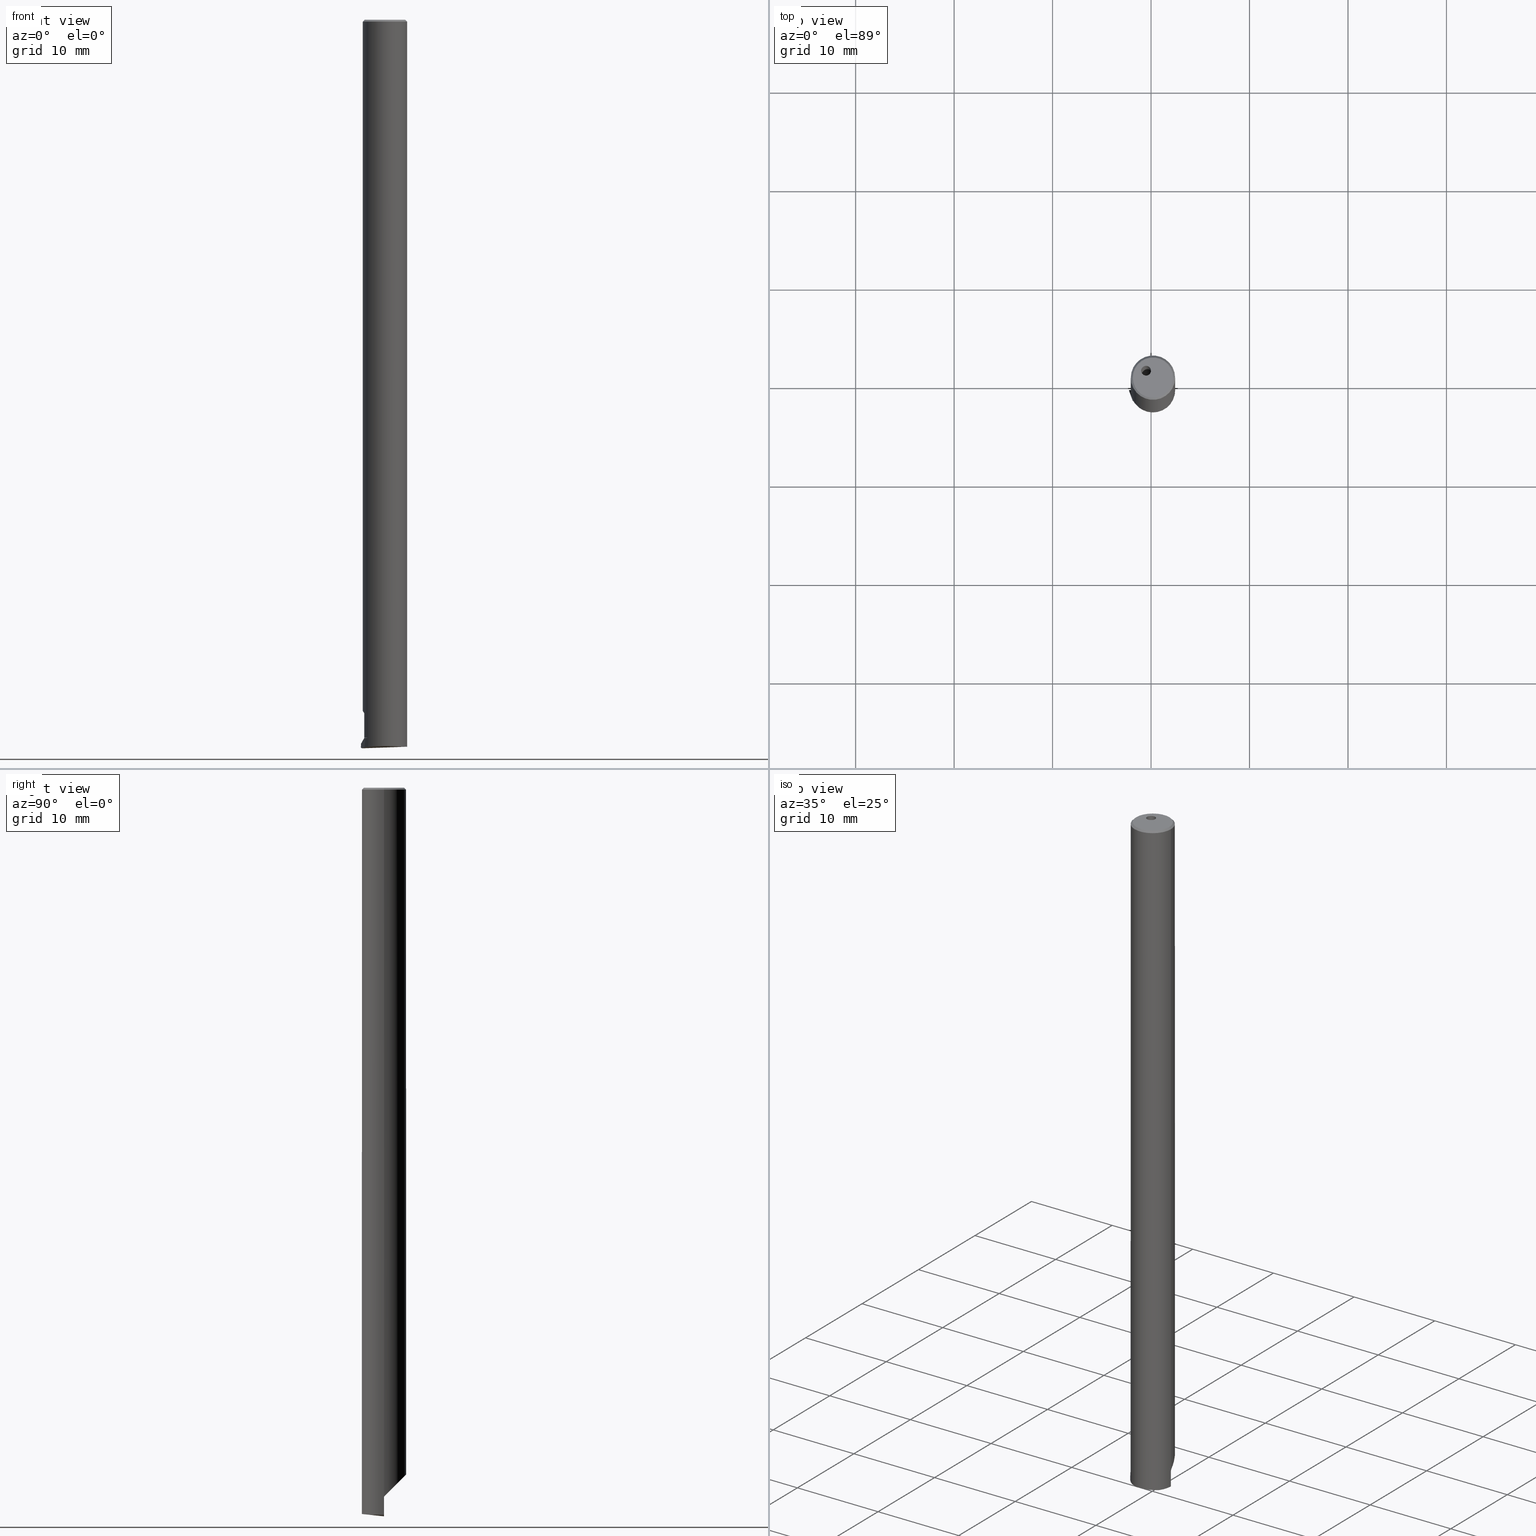
[diagram: canonical four-view strip — front | top / right | iso, engineering-drawing reading convention]
A machine part, canonical four-view strip (front | top / right | iso — engineering-drawing reading convention). The complete STEP part file that produces these views, byte-faithful:
ISO-10303-21;
HEADER;
FILE_DESCRIPTION(('no description'),'unknown implementation level');
FILE_NAME('E8D491BA-F85B-4BD4-B3FE-30901BA60B8D_export.stp','  ',('CIMSOURCE GmbH'),('CADClick - KiM GmbH - www.kimweb.de'),'unknown preprocess','ACIS','unknown authorization');
FILE_SCHEMA(('automotive_design'));
ENDSEC;
DATA;
#1=MECHANICAL_DESIGN_GEOMETRIC_PRESENTATION_REPRESENTATION(' ',(#10,#11,#12,#13,#14,#15,#16,#17,#18,#19,#20,#21,#22,#23,#24,#25,#26,#27,#28,#29,#30,#31,#32,#33,#34,#35,#36,#37,#38,#39,#40,#41,#42,#43,#44,#45,#46,#47,#48,#49,#50,#51,#52,#53,#54,#55,#56,#57,#58,#59,#60,#61,#62,#63,#64,#65,#66,#67,#68,#69,#70,#71,#72,#73,#74,#75,#76,#77,#78,#79,#80,#81,#82,#83,#84,#85,#86,#87,#88,#89,#90,#91,#92,#93,#94,#95,#96,#97,#98,#99,#100,#101,#102,#103,#104,#105,#106),#6);
#2=PRODUCT_DEFINITION_CONTEXT('',#107,'design');
#3=APPLICATION_PROTOCOL_DEFINITION('INTERNATIONAL STANDARD','automotive_design',1994,#107);
#4=PRODUCT_CATEGORY_RELATIONSHIP('NONE','NONE',#108,#109);
#5=SHAPE_DEFINITION_REPRESENTATION(#110,#111);
#6= (GEOMETRIC_REPRESENTATION_CONTEXT(3)GLOBAL_UNCERTAINTY_ASSIGNED_CONTEXT((#114))GLOBAL_UNIT_ASSIGNED_CONTEXT((#116,#117,#118))REPRESENTATION_CONTEXT('NONE','WORKSPACE'));
#10=STYLED_ITEM('',(#120),#121);
#11=STYLED_ITEM('',(#122),#123);
#12=STYLED_ITEM('',(#124),#125);
#13=STYLED_ITEM('',(#126),#127);
#14=STYLED_ITEM('',(#128),#129);
#15=STYLED_ITEM('',(#130),#131);
#16=STYLED_ITEM('',(#132),#133);
#17=STYLED_ITEM('',(#134),#135);
#18=STYLED_ITEM('',(#136),#137);
#19=STYLED_ITEM('',(#138),#139);
#20=STYLED_ITEM('',(#140),#141);
#21=STYLED_ITEM('',(#142),#143);
#22=STYLED_ITEM('',(#144),#145);
#23=STYLED_ITEM('',(#146),#147);
#24=STYLED_ITEM('',(#148),#149);
#25=STYLED_ITEM('',(#150),#151);
#26=STYLED_ITEM('',(#152),#153);
#27=STYLED_ITEM('',(#154),#155);
#28=STYLED_ITEM('',(#156),#157);
#29=STYLED_ITEM('',(#158),#159);
#30=STYLED_ITEM('',(#160),#161);
#31=STYLED_ITEM('',(#162),#163);
#32=STYLED_ITEM('',(#164),#165);
#33=STYLED_ITEM('',(#166),#167);
#34=STYLED_ITEM('',(#168),#169);
#35=STYLED_ITEM('',(#170),#171);
#36=STYLED_ITEM('',(#172),#173);
#37=STYLED_ITEM('',(#174),#175);
#38=STYLED_ITEM('',(#176),#177);
#39=STYLED_ITEM('',(#178),#179);
#40=STYLED_ITEM('',(#180),#181);
#41=STYLED_ITEM('',(#182),#183);
#42=STYLED_ITEM('',(#184),#185);
#43=STYLED_ITEM('',(#186),#187);
#44=STYLED_ITEM('',(#188),#189);
#45=STYLED_ITEM('',(#190),#191);
#46=STYLED_ITEM('',(#192),#193);
#47=STYLED_ITEM('',(#194),#195);
#48=STYLED_ITEM('',(#196),#197);
#49=STYLED_ITEM('',(#198),#199);
#50=STYLED_ITEM('',(#200),#201);
#51=STYLED_ITEM('',(#202),#203);
#52=STYLED_ITEM('',(#204),#205);
#53=STYLED_ITEM('',(#206),#207);
#54=STYLED_ITEM('',(#208),#209);
#55=STYLED_ITEM('',(#210),#211);
#56=STYLED_ITEM('',(#212),#213);
#57=STYLED_ITEM('',(#214),#215);
#58=STYLED_ITEM('',(#216),#217);
#59=STYLED_ITEM('',(#218),#219);
#60=STYLED_ITEM('',(#220),#221);
#61=STYLED_ITEM('',(#222),#223);
#62=STYLED_ITEM('',(#224),#225);
#63=STYLED_ITEM('',(#226),#227);
#64=STYLED_ITEM('',(#228),#229);
#65=STYLED_ITEM('',(#230),#231);
#66=STYLED_ITEM('',(#232),#233);
#67=STYLED_ITEM('',(#234),#235);
#68=STYLED_ITEM('',(#236),#237);
#69=STYLED_ITEM('',(#238),#239);
#70=STYLED_ITEM('',(#240),#241);
#71=STYLED_ITEM('',(#242),#243);
#72=STYLED_ITEM('',(#244),#245);
#73=STYLED_ITEM('',(#246),#247);
#74=STYLED_ITEM('',(#248),#249);
#75=STYLED_ITEM('',(#250),#251);
#76=STYLED_ITEM('',(#252),#253);
#77=STYLED_ITEM('',(#254),#255);
#78=STYLED_ITEM('',(#256),#257);
#79=STYLED_ITEM('',(#258),#259);
#80=STYLED_ITEM('',(#260),#261);
#81=STYLED_ITEM('',(#262),#263);
#82=STYLED_ITEM('',(#264),#265);
#83=STYLED_ITEM('',(#266),#267);
#84=STYLED_ITEM('',(#268),#269);
#85=STYLED_ITEM('',(#270),#271);
#86=STYLED_ITEM('',(#272),#273);
#87=STYLED_ITEM('',(#274),#275);
#88=STYLED_ITEM('',(#276),#277);
#89=STYLED_ITEM('',(#278),#279);
#90=STYLED_ITEM('',(#280),#281);
#91=STYLED_ITEM('',(#282),#283);
#92=STYLED_ITEM('',(#284),#285);
#93=STYLED_ITEM('',(#286),#287);
#94=STYLED_ITEM('',(#288),#289);
#95=STYLED_ITEM('',(#290),#291);
#96=STYLED_ITEM('',(#292),#293);
#97=STYLED_ITEM('',(#294),#295);
#98=STYLED_ITEM('',(#296),#297);
#99=STYLED_ITEM('',(#298),#299);
#100=STYLED_ITEM('',(#300),#301);
#101=STYLED_ITEM('',(#302),#303);
#102=STYLED_ITEM('',(#304),#305);
#103=STYLED_ITEM('',(#306),#307);
#104=STYLED_ITEM('',(#308),#309);
#105=STYLED_ITEM('',(#310),#311);
#106=STYLED_ITEM('',(#312),#313);
#107=APPLICATION_CONTEXT(' ');
#108=PRODUCT_CATEGORY('part','NONE');
#109=PRODUCT_RELATED_PRODUCT_CATEGORY('detail',' ',(#314));
#110=PRODUCT_DEFINITION_SHAPE('NONE','NONE',#315);
#111=ADVANCED_BREP_SHAPE_REPRESENTATION('NONE',(#153,#316),#6);
#114=UNCERTAINTY_MEASURE_WITH_UNIT(LENGTH_MEASURE(1.0E-006),#116,'','');
#116= (CONVERSION_BASED_UNIT('MILLIMETRE',#319)LENGTH_UNIT()NAMED_UNIT(#322));
#117= (NAMED_UNIT(#324)PLANE_ANGLE_UNIT()SI_UNIT($,.RADIAN.));
#118= (NAMED_UNIT(#324)SOLID_ANGLE_UNIT()SI_UNIT($,.STERADIAN.));
#120=PRESENTATION_STYLE_ASSIGNMENT((#330));
#121=EDGE_CURVE('NONE',#279,#235,#331,.T.);
#122=PRESENTATION_STYLE_ASSIGNMENT((#332));
#123=VERTEX_POINT('NONE',#333);
#124=PRESENTATION_STYLE_ASSIGNMENT((#334));
#125=EDGE_CURVE('NONE',#123,#245,#335,.T.);
#126=PRESENTATION_STYLE_ASSIGNMENT((#336));
#127=EDGE_CURVE('NONE',#235,#199,#337,.T.);
#128=PRESENTATION_STYLE_ASSIGNMENT((#338));
#129=ADVANCED_FACE('NONE',(#339),#340,.F.);
#130=PRESENTATION_STYLE_ASSIGNMENT((#341));
#131=VERTEX_POINT('NONE',#342);
#132=PRESENTATION_STYLE_ASSIGNMENT((#343));
#133=VERTEX_POINT('NONE',#344);
#134=PRESENTATION_STYLE_ASSIGNMENT((#345));
#135=EDGE_CURVE('NONE',#265,#131,#346,.F.);
#136=PRESENTATION_STYLE_ASSIGNMENT((#347));
#137=EDGE_CURVE('NONE',#179,#229,#348,.F.);
#138=PRESENTATION_STYLE_ASSIGNMENT((#349));
#139=EDGE_CURVE('NONE',#213,#243,#350,.F.);
#140=PRESENTATION_STYLE_ASSIGNMENT((#351));
#141=EDGE_CURVE('NONE',#243,#217,#352,.T.);
#142=PRESENTATION_STYLE_ASSIGNMENT((#353));
#143=EDGE_CURVE('NONE',#237,#233,#354,.F.);
#144=PRESENTATION_STYLE_ASSIGNMENT((#355));
#145=ADVANCED_FACE('NONE',(#356),#357,.T.);
#146=PRESENTATION_STYLE_ASSIGNMENT((#358));
#147=EDGE_CURVE('NONE',#197,#245,#359,.T.);
#148=PRESENTATION_STYLE_ASSIGNMENT((#360));
#149=VERTEX_POINT('NONE',#361);
#150=PRESENTATION_STYLE_ASSIGNMENT((#362));
#151=VERTEX_POINT('NONE',#363);
#152=PRESENTATION_STYLE_ASSIGNMENT((#364));
#153=MANIFOLD_SOLID_BREP('NONE',#365);
#154=PRESENTATION_STYLE_ASSIGNMENT((#366));
#155=EDGE_CURVE('NONE',#161,#227,#367,.T.);
#156=PRESENTATION_STYLE_ASSIGNMENT((#368));
#157=VERTEX_POINT('NONE',#369);
#158=PRESENTATION_STYLE_ASSIGNMENT((#370));
#159=ADVANCED_FACE('NONE',(#371,#372),#373,.F.);
#160=PRESENTATION_STYLE_ASSIGNMENT((#374));
#161=VERTEX_POINT('NONE',#375);
#162=PRESENTATION_STYLE_ASSIGNMENT((#376));
#163=EDGE_CURVE('NONE',#207,#227,#377,.T.);
#164=PRESENTATION_STYLE_ASSIGNMENT((#378));
#165=EDGE_CURVE('NONE',#133,#179,#379,.F.);
#166=PRESENTATION_STYLE_ASSIGNMENT((#380));
#167=EDGE_CURVE('NONE',#179,#221,#381,.F.);
#168=PRESENTATION_STYLE_ASSIGNMENT((#382));
#169=EDGE_CURVE('NONE',#197,#123,#383,.T.);
#170=PRESENTATION_STYLE_ASSIGNMENT((#384));
#171=ADVANCED_FACE('NONE',(#385),#386,.F.);
#172=PRESENTATION_STYLE_ASSIGNMENT((#387));
#173=EDGE_CURVE('NONE',#243,#133,#388,.F.);
#174=PRESENTATION_STYLE_ASSIGNMENT((#389));
#175=EDGE_CURVE('NONE',#221,#229,#390,.T.);
#176=PRESENTATION_STYLE_ASSIGNMENT((#391));
#177=EDGE_CURVE('NONE',#183,#239,#392,.T.);
#178=PRESENTATION_STYLE_ASSIGNMENT((#393));
#179=VERTEX_POINT('NONE',#394);
#180=PRESENTATION_STYLE_ASSIGNMENT((#395));
#181=EDGE_CURVE('NONE',#131,#199,#396,.T.);
#182=PRESENTATION_STYLE_ASSIGNMENT((#397));
#183=VERTEX_POINT('NONE',#398);
#184=PRESENTATION_STYLE_ASSIGNMENT((#399));
#185=EDGE_CURVE('NONE',#203,#151,#400,.T.);
#186=PRESENTATION_STYLE_ASSIGNMENT((#401));
#187=ADVANCED_FACE('NONE',(#402),#403,.F.);
#188=PRESENTATION_STYLE_ASSIGNMENT((#404));
#189=EDGE_CURVE('NONE',#259,#279,#405,.F.);
#190=PRESENTATION_STYLE_ASSIGNMENT((#406));
#191=EDGE_CURVE('NONE',#149,#237,#407,.F.);
#192=PRESENTATION_STYLE_ASSIGNMENT((#408));
#193=EDGE_CURVE('NONE',#237,#227,#409,.T.);
#194=PRESENTATION_STYLE_ASSIGNMENT((#410));
#195=EDGE_CURVE('NONE',#239,#297,#411,.T.);
#196=PRESENTATION_STYLE_ASSIGNMENT((#412));
#197=VERTEX_POINT('NONE',#413);
#198=PRESENTATION_STYLE_ASSIGNMENT((#414));
#199=VERTEX_POINT('NONE',#415);
#200=PRESENTATION_STYLE_ASSIGNMENT((#416));
#201=ADVANCED_FACE('NONE',(#417),#418,.F.);
#202=PRESENTATION_STYLE_ASSIGNMENT((#419));
#203=VERTEX_POINT('NONE',#420);
#204=PRESENTATION_STYLE_ASSIGNMENT((#421));
#205=EDGE_CURVE('NONE',#307,#133,#422,.T.);
#206=PRESENTATION_STYLE_ASSIGNMENT((#423));
#207=VERTEX_POINT('NONE',#424);
#208=PRESENTATION_STYLE_ASSIGNMENT((#425));
#209=ADVANCED_FACE('NONE',(#426),#427,.T.);
#210=PRESENTATION_STYLE_ASSIGNMENT((#428));
#211=EDGE_CURVE('NONE',#157,#161,#429,.T.);
#212=PRESENTATION_STYLE_ASSIGNMENT((#430));
#213=VERTEX_POINT('NONE',#431);
#214=PRESENTATION_STYLE_ASSIGNMENT((#432));
#215=EDGE_CURVE('NONE',#131,#279,#433,.F.);
#216=PRESENTATION_STYLE_ASSIGNMENT((#434));
#217=VERTEX_POINT('NONE',#435);
#218=PRESENTATION_STYLE_ASSIGNMENT((#436));
#219=ADVANCED_FACE('NONE',(#437),#438,.F.);
#220=PRESENTATION_STYLE_ASSIGNMENT((#439));
#221=VERTEX_POINT('NONE',#440);
#222=PRESENTATION_STYLE_ASSIGNMENT((#441));
#223=EDGE_CURVE('NONE',#217,#213,#442,.T.);
#224=PRESENTATION_STYLE_ASSIGNMENT((#443));
#225=EDGE_CURVE('NONE',#123,#265,#444,.T.);
#226=PRESENTATION_STYLE_ASSIGNMENT((#445));
#227=VERTEX_POINT('NONE',#446);
#228=PRESENTATION_STYLE_ASSIGNMENT((#447));
#229=VERTEX_POINT('NONE',#448);
#230=PRESENTATION_STYLE_ASSIGNMENT((#449));
#231=ADVANCED_FACE('NONE',(#450),#451,.F.);
#232=PRESENTATION_STYLE_ASSIGNMENT((#452));
#233=VERTEX_POINT('NONE',#453);
#234=PRESENTATION_STYLE_ASSIGNMENT((#454));
#235=VERTEX_POINT('NONE',#455);
#236=PRESENTATION_STYLE_ASSIGNMENT((#456));
#237=VERTEX_POINT('NONE',#457);
#238=PRESENTATION_STYLE_ASSIGNMENT((#458));
#239=VERTEX_POINT('NONE',#459);
#240=PRESENTATION_STYLE_ASSIGNMENT((#460));
#241=ADVANCED_FACE('NONE',(#461),#462,.F.);
#242=PRESENTATION_STYLE_ASSIGNMENT((#463));
#243=VERTEX_POINT('NONE',#464);
#244=PRESENTATION_STYLE_ASSIGNMENT((#465));
#245=VERTEX_POINT('NONE',#466);
#246=PRESENTATION_STYLE_ASSIGNMENT((#467));
#247=ADVANCED_FACE('NONE',(#468),#469,.F.);
#248=PRESENTATION_STYLE_ASSIGNMENT((#470));
#249=EDGE_CURVE('NONE',#229,#149,#471,.F.);
#250=PRESENTATION_STYLE_ASSIGNMENT((#472));
#251=ADVANCED_FACE('NONE',(#473),#474,.F.);
#252=PRESENTATION_STYLE_ASSIGNMENT((#475));
#253=EDGE_CURVE('NONE',#245,#307,#476,.T.);
#254=PRESENTATION_STYLE_ASSIGNMENT((#477));
#255=EDGE_CURVE('NONE',#199,#151,#478,.T.);
#256=PRESENTATION_STYLE_ASSIGNMENT((#479));
#257=ADVANCED_FACE('NONE',(#480),#481,.T.);
#258=PRESENTATION_STYLE_ASSIGNMENT((#482));
#259=VERTEX_POINT('NONE',#483);
#260=PRESENTATION_STYLE_ASSIGNMENT((#484));
#261=ADVANCED_FACE('NONE',(#485),#486,.F.);
#262=PRESENTATION_STYLE_ASSIGNMENT((#487));
#263=EDGE_CURVE('NONE',#233,#259,#488,.F.);
#264=PRESENTATION_STYLE_ASSIGNMENT((#489));
#265=VERTEX_POINT('NONE',#490);
#266=PRESENTATION_STYLE_ASSIGNMENT((#491));
#267=EDGE_CURVE('NONE',#297,#299,#492,.T.);
#268=PRESENTATION_STYLE_ASSIGNMENT((#493));
#269=ADVANCED_FACE('NONE',(#494),#495,.T.);
#270=PRESENTATION_STYLE_ASSIGNMENT((#496));
#271=ADVANCED_FACE('NONE',(#497),#498,.T.);
#272=PRESENTATION_STYLE_ASSIGNMENT((#499));
#273=EDGE_CURVE('NONE',#157,#207,#500,.T.);
#274=PRESENTATION_STYLE_ASSIGNMENT((#501));
#275=EDGE_CURVE('NONE',#213,#235,#502,.T.);
#276=PRESENTATION_STYLE_ASSIGNMENT((#503));
#277=EDGE_CURVE('NONE',#239,#183,#504,.F.);
#278=PRESENTATION_STYLE_ASSIGNMENT((#505));
#279=VERTEX_POINT('NONE',#506);
#280=PRESENTATION_STYLE_ASSIGNMENT((#507));
#281=ADVANCED_FACE('NONE',(#508),#509,.T.);
#282=PRESENTATION_STYLE_ASSIGNMENT((#510));
#283=EDGE_CURVE('NONE',#259,#265,#511,.F.);
#284=PRESENTATION_STYLE_ASSIGNMENT((#512));
#285=ADVANCED_FACE('NONE',(#513),#514,.F.);
#286=PRESENTATION_STYLE_ASSIGNMENT((#515));
#287=EDGE_CURVE('NONE',#183,#299,#516,.T.);
#288=PRESENTATION_STYLE_ASSIGNMENT((#517));
#289=EDGE_CURVE('NONE',#299,#297,#518,.F.);
#290=PRESENTATION_STYLE_ASSIGNMENT((#519));
#291=EDGE_CURVE('NONE',#203,#197,#520,.T.);
#292=PRESENTATION_STYLE_ASSIGNMENT((#521));
#293=ADVANCED_FACE('NONE',(#522,#523),#524,.F.);
#294=PRESENTATION_STYLE_ASSIGNMENT((#525));
#295=EDGE_CURVE('NONE',#227,#161,#526,.F.);
#296=PRESENTATION_STYLE_ASSIGNMENT((#527));
#297=VERTEX_POINT('NONE',#528);
#298=PRESENTATION_STYLE_ASSIGNMENT((#529));
#299=VERTEX_POINT('NONE',#530);
#300=PRESENTATION_STYLE_ASSIGNMENT((#531));
#301=EDGE_CURVE('NONE',#133,#161,#532,.T.);
#302=PRESENTATION_STYLE_ASSIGNMENT((#533));
#303=EDGE_CURVE('NONE',#207,#157,#534,.F.);
#304=PRESENTATION_STYLE_ASSIGNMENT((#535));
#305=EDGE_CURVE('NONE',#217,#203,#536,.F.);
#306=PRESENTATION_STYLE_ASSIGNMENT((#537));
#307=VERTEX_POINT('NONE',#538);
#308=PRESENTATION_STYLE_ASSIGNMENT((#539));
#309=EDGE_CURVE('NONE',#307,#221,#540,.T.);
#310=PRESENTATION_STYLE_ASSIGNMENT((#541));
#311=EDGE_CURVE('NONE',#151,#217,#542,.F.);
#312=PRESENTATION_STYLE_ASSIGNMENT((#543));
#313=EDGE_CURVE('NONE',#233,#149,#544,.T.);
#314=PRODUCT('NONE','NONE','PART-NONE-DESC',(#545));
#315=PRODUCT_DEFINITION('NONE','NONE',#546,#2);
#316=AXIS2_PLACEMENT_3D('',#547,#548,#549);
#319=LENGTH_MEASURE_WITH_UNIT(LENGTH_MEASURE(1.0),#550);
#322=DIMENSIONAL_EXPONENTS(1.0,0.0,0.0,0.0,0.0,0.0,0.0);
#324=DIMENSIONAL_EXPONENTS(0.0,0.0,0.0,0.0,0.0,0.0,0.0);
#330=CURVE_STYLE('',#551,POSITIVE_LENGTH_MEASURE(1.0E-006),#552);
#331=LINE('',#553,#554);
#332=POINT_STYLE(' ',#555,POSITIVE_LENGTH_MEASURE(1.0E-006),#556);
#333=CARTESIAN_POINT('',(-1.90634409921287,-1.03998001468202,-72.95));
#334=CURVE_STYLE('',#557,POSITIVE_LENGTH_MEASURE(1.0E-006),#558);
#335=LINE('',#559,#560);
#336=CURVE_STYLE('',#561,POSITIVE_LENGTH_MEASURE(1.0E-006),#562);
#337=LINE('',#563,#564);
#338=SURFACE_STYLE_USAGE(.BOTH.,#565);
#339=FACE_OUTER_BOUND('',#566,.T.);
#340=PLANE('',#567);
#341=POINT_STYLE(' ',#568,POSITIVE_LENGTH_MEASURE(1.0E-006),#569);
#342=CARTESIAN_POINT('',(-1.81053151405145,-1.30553695935811,-72.9726640201851));
#343=POINT_STYLE(' ',#570,POSITIVE_LENGTH_MEASURE(1.0E-006),#571);
#344=CARTESIAN_POINT('',(2.44365590078714,-0.193655900786653,-72.1035533905933));
#345=CURVE_STYLE('',#572,POSITIVE_LENGTH_MEASURE(1.0E-006),#573);
#346=(B_SPLINE_CURVE(2,(#575,#576,#577),.UNSPECIFIED.,.F.,.F.)B_SPLINE_CURVE_WITH_KNOTS((3,3),(1.84583817615278,2.24729082343907),.UNSPECIFIED.)RATIONAL_B_SPLINE_CURVE((1.16981550525755,1.17636481128368,1.1777302955044))BOUNDED_CURVE()REPRESENTATION_ITEM('')GEOMETRIC_REPRESENTATION_ITEM()CURVE());
#347=CURVE_STYLE('',#584,POSITIVE_LENGTH_MEASURE(1.0E-006),#585);
#348=ELLIPSE('',#586,3.18198051533945,2.25);
#349=CURVE_STYLE('',#587,POSITIVE_LENGTH_MEASURE(1.0E-006),#588);
#350=ELLIPSE('',#589,2.25137147467235,2.25);
#351=CURVE_STYLE('',#590,POSITIVE_LENGTH_MEASURE(1.0E-006),#591);
#352=LINE('',#592,#593);
#353=CURVE_STYLE('',#594,POSITIVE_LENGTH_MEASURE(1.0E-006),#595);
#354=ELLIPSE('',#596,4.50000000000001,2.25);
#355=SURFACE_STYLE_USAGE(.BOTH.,#597);
#356=FACE_OUTER_BOUND('',#598,.T.);
#357=CONICAL_SURFACE('',#599,2.43795556049136,0.523598775598298);
#358=CURVE_STYLE('',#600,POSITIVE_LENGTH_MEASURE(1.0E-006),#601);
#359=LINE('',#602,#603);
#360=POINT_STYLE(' ',#604,POSITIVE_LENGTH_MEASURE(1.0E-006),#605);
#361=CARTESIAN_POINT('',(-1.90634409921287,0.614118820283527,-70.45));
#362=POINT_STYLE(' ',#606,POSITIVE_LENGTH_MEASURE(1.0E-006),#607);
#363=CARTESIAN_POINT('',(-2.14979409059774,-0.475293026610082,-73.9703987452679));
#364=SURFACE_STYLE_USAGE(.BOTH.,#608);
#365=CLOSED_SHELL('',(#281,#247,#257,#159,#293,#209,#145,#129,#251,#201,#219,#171,#231,#271,#285,#187,#261,#241,#269));
#366=CURVE_STYLE('',#609,POSITIVE_LENGTH_MEASURE(1.0E-006),#610);
#367=CIRCLE('',#611,2.25);
#368=POINT_STYLE(' ',#612,POSITIVE_LENGTH_MEASURE(1.0E-006),#613);
#369=CARTESIAN_POINT('',(2.24365590078714,-0.193655900786654,0.0));
#370=SURFACE_STYLE_USAGE(.BOTH.,#614);
#371=FACE_OUTER_BOUND('',#615,.T.);
#372=FACE_BOUND('',#616,.T.);
#373=PLANE('',#617);
#374=POINT_STYLE(' ',#618,POSITIVE_LENGTH_MEASURE(1.0E-006),#619);
#375=CARTESIAN_POINT('',(2.44365590078714,-0.193655900786654,-0.200000000000001));
#376=CURVE_STYLE('',#620,POSITIVE_LENGTH_MEASURE(1.0E-006),#621);
#377=LINE('',#622,#623);
#378=CURVE_STYLE('',#624,POSITIVE_LENGTH_MEASURE(1.0E-006),#625);
#379=B_SPLINE_CURVE_WITH_KNOTS('',3,(#626,#627,#628,#629,#630,#631),.UNSPECIFIED.,.F.,.F.,(4,2,4),(1.32450734006294,1.41868678834431,1.51286623662568),.UNSPECIFIED.);
#380=CURVE_STYLE('',#632,POSITIVE_LENGTH_MEASURE(1.0E-006),#633);
#381=LINE('',#634,#635);
#382=CURVE_STYLE('',#636,POSITIVE_LENGTH_MEASURE(1.0E-006),#637);
#383=LINE('',#638,#639);
#384=SURFACE_STYLE_USAGE(.BOTH.,#640);
#385=FACE_OUTER_BOUND('',#641,.T.);
#386=PLANE('',#642);
#387=CURVE_STYLE('',#643,POSITIVE_LENGTH_MEASURE(1.0E-006),#644);
#388=LINE('',#645,#646);
#389=CURVE_STYLE('',#647,POSITIVE_LENGTH_MEASURE(1.0E-006),#648);
#390=LINE('',#649,#650);
#391=CURVE_STYLE('',#651,POSITIVE_LENGTH_MEASURE(1.0E-006),#652);
#392=ELLIPSE('',#653,0.707106781186543,0.5);
#393=POINT_STYLE(' ',#654,POSITIVE_LENGTH_MEASURE(1.0E-006),#655);
#394=CARTESIAN_POINT('',(2.44246410684836,-0.120432596083281,-71.9267766952966));
#395=CURVE_STYLE('',#656,POSITIVE_LENGTH_MEASURE(1.0E-006),#657);
#396=LINE('',#658,#659);
#397=POINT_STYLE(' ',#660,POSITIVE_LENGTH_MEASURE(1.0E-006),#661);
#398=CARTESIAN_POINT('',(-0.00634409921286203,0.506344099213354,-71.3));
#399=CURVE_STYLE('',#662,POSITIVE_LENGTH_MEASURE(1.0E-006),#663);
#400=B_SPLINE_CURVE_WITH_KNOTS('',3,(#664,#665,#666,#667,#668,#669,#670,#671),.UNSPECIFIED.,.F.,.F.,(4,2,2,4),(0.0,0.208809110151346,0.413727698738637,0.552855282955466),.UNSPECIFIED.);
#401=SURFACE_STYLE_USAGE(.BOTH.,#672);
#402=FACE_OUTER_BOUND('',#673,.T.);
#403=PLANE('',#674);
#404=CURVE_STYLE('',#675,POSITIVE_LENGTH_MEASURE(1.0E-006),#676);
#405=CIRCLE('',#677,2.25);
#406=CURVE_STYLE('',#678,POSITIVE_LENGTH_MEASURE(1.0E-006),#679);
#407=ELLIPSE('',#680,4.50000000000001,2.25);
#408=CURVE_STYLE('',#681,POSITIVE_LENGTH_MEASURE(1.0E-006),#682);
#409=LINE('',#683,#684);
#410=CURVE_STYLE('',#685,POSITIVE_LENGTH_MEASURE(1.0E-006),#686);
#411=LINE('',#687,#688);
#412=POINT_STYLE(' ',#689,POSITIVE_LENGTH_MEASURE(1.0E-006),#690);
#413=CARTESIAN_POINT('',(-2.23557207534796,-0.193655900786636,-73.5202395819391));
#414=POINT_STYLE(' ',#691,POSITIVE_LENGTH_MEASURE(1.0E-006),#692);
#415=CARTESIAN_POINT('',(-1.87078073334128,-1.23373473581846,-73.8906833094279));
#416=SURFACE_STYLE_USAGE(.BOTH.,#693);
#417=FACE_OUTER_BOUND('',#694,.T.);
#418=PLANE('',#695);
#419=POINT_STYLE(' ',#696,POSITIVE_LENGTH_MEASURE(1.0E-006),#697);
#420=CARTESIAN_POINT('',(-2.25038226755887,-0.193655900786636,-73.9187711302284));
#421=CURVE_STYLE('',#698,POSITIVE_LENGTH_MEASURE(1.0E-006),#699);
#422=LINE('',#700,#701);
#423=POINT_STYLE(' ',#702,POSITIVE_LENGTH_MEASURE(1.0E-006),#703);
#424=CARTESIAN_POINT('',(-1.85634409921287,-0.193655900786639,0.0));
#425=SURFACE_STYLE_USAGE(.BOTH.,#704);
#426=FACE_OUTER_BOUND('',#705,.T.);
#427=CYLINDRICAL_SURFACE('',#706,2.25);
#428=CURVE_STYLE('',#707,POSITIVE_LENGTH_MEASURE(1.0E-006),#708);
#429=LINE('',#709,#710);
#430=POINT_STYLE(' ',#711,POSITIVE_LENGTH_MEASURE(1.0E-006),#712);
#431=CARTESIAN_POINT('',(1.95553122494828,-1.59304696196721,-73.852918072677));
#432=CURVE_STYLE('',#713,POSITIVE_LENGTH_MEASURE(1.0E-006),#714);
#433=(B_SPLINE_CURVE(2,(#716,#717,#718),.UNSPECIFIED.,.F.,.F.)B_SPLINE_CURVE_WITH_KNOTS((3,3),(2.41907041521117,3.02681549268834),.UNSPECIFIED.)RATIONAL_B_SPLINE_CURVE((1.17142992371868,1.17142992371868,1.16060979290444))BOUNDED_CURVE()REPRESENTATION_ITEM('')GEOMETRIC_REPRESENTATION_ITEM()CURVE());
#434=POINT_STYLE(' ',#725,POSITIVE_LENGTH_MEASURE(1.0E-006),#726);
#435=CARTESIAN_POINT('',(-2.16617302306743,-0.193655900786637,-73.9968511566351));
#436=SURFACE_STYLE_USAGE(.BOTH.,#727);
#437=FACE_OUTER_BOUND('',#728,.T.);
#438=PLANE('',#729);
#439=POINT_STYLE(' ',#730,POSITIVE_LENGTH_MEASURE(1.0E-006),#731);
#440=CARTESIAN_POINT('',(-1.90634409921287,-0.120432596083266,-71.9267766952966));
#441=CURVE_STYLE('',#732,POSITIVE_LENGTH_MEASURE(1.0E-006),#733);
#442=LINE('',#734,#735);
#443=CURVE_STYLE('',#736,POSITIVE_LENGTH_MEASURE(1.0E-006),#737);
#444=LINE('',#738,#739);
#445=POINT_STYLE(' ',#740,POSITIVE_LENGTH_MEASURE(1.0E-006),#741);
#446=CARTESIAN_POINT('',(-2.05634409921286,-0.193655900786638,-0.200000000000001));
#447=POINT_STYLE(' ',#742,POSITIVE_LENGTH_MEASURE(1.0E-006),#743);
#448=CARTESIAN_POINT('',(-1.90634409921286,0.614118820283547,-71.1922252789298));
#449=SURFACE_STYLE_USAGE(.BOTH.,#744);
#450=FACE_OUTER_BOUND('',#745,.T.);
#451=PLANE('',#746);
#452=POINT_STYLE(' ',#747,POSITIVE_LENGTH_MEASURE(1.0E-006),#748);
#453=CARTESIAN_POINT('',(-1.90634409921287,-1.00143062185681,-70.45));
#454=POINT_STYLE(' ',#749,POSITIVE_LENGTH_MEASURE(1.0E-006),#750);
#455=CARTESIAN_POINT('',(-1.52994409623132,-1.63992802258198,-73.8479906746526));
#456=POINT_STYLE(' ',#751,POSITIVE_LENGTH_MEASURE(1.0E-006),#752);
#457=CARTESIAN_POINT('',(-2.05634409921286,-0.193655900786638,-70.1901923788647));
#458=POINT_STYLE(' ',#753,POSITIVE_LENGTH_MEASURE(1.0E-006),#754);
#459=CARTESIAN_POINT('',(-1.00634409921286,0.506344099213358,-71.3));
#460=SURFACE_STYLE_USAGE(.BOTH.,#755);
#461=FACE_OUTER_BOUND('',#756,.T.);
#462=CYLINDRICAL_SURFACE('',#757,0.5);
#463=POINT_STYLE(' ',#758,POSITIVE_LENGTH_MEASURE(1.0E-006),#759);
#464=CARTESIAN_POINT('',(2.44365590078714,-0.193655900786653,-73.8358723833888));
#465=POINT_STYLE(' ',#760,POSITIVE_LENGTH_MEASURE(1.0E-006),#761);
#466=CARTESIAN_POINT('',(-1.90634409921287,-0.193655900786638,-72.95));
#467=SURFACE_STYLE_USAGE(.BOTH.,#762);
#468=FACE_OUTER_BOUND('',#763,.T.);
#469=CYLINDRICAL_SURFACE('',#764,0.5);
#470=CURVE_STYLE('',#765,POSITIVE_LENGTH_MEASURE(1.0E-006),#766);
#471=LINE('',#767,#768);
#472=SURFACE_STYLE_USAGE(.BOTH.,#769);
#473=FACE_OUTER_BOUND('',#770,.T.);
#474=CYLINDRICAL_SURFACE('',#771,0.25);
#475=CURVE_STYLE('',#772,POSITIVE_LENGTH_MEASURE(1.0E-006),#773);
#476=LINE('',#774,#775);
#477=CURVE_STYLE('',#776,POSITIVE_LENGTH_MEASURE(1.0E-006),#777);
#478=LINE('',#778,#779);
#479=SURFACE_STYLE_USAGE(.BOTH.,#780);
#480=FACE_OUTER_BOUND('',#781,.T.);
#481=CYLINDRICAL_SURFACE('',#782,2.25);
#482=POINT_STYLE(' ',#783,POSITIVE_LENGTH_MEASURE(1.0E-006),#784);
#483=CARTESIAN_POINT('',(-1.90634409921286,-1.00143062185685,-72.9));
#484=SURFACE_STYLE_USAGE(.BOTH.,#785);
#485=FACE_OUTER_BOUND('',#786,.T.);
#486=PLANE('',#787);
#487=CURVE_STYLE('',#788,POSITIVE_LENGTH_MEASURE(1.0E-006),#789);
#488=LINE('',#790,#791);
#489=POINT_STYLE(' ',#792,POSITIVE_LENGTH_MEASURE(1.0E-006),#793);
#490=CARTESIAN_POINT('',(-1.90634409921287,-1.03718871784699,-72.922661549059));
#491=CURVE_STYLE('',#794,POSITIVE_LENGTH_MEASURE(1.0E-006),#795);
#492=CIRCLE('',#796,0.5);
#493=SURFACE_STYLE_USAGE(.BOTH.,#797);
#494=FACE_OUTER_BOUND('',#798,.T.);
#495=CONICAL_SURFACE('',#799,2.05,0.785398163397437);
#496=SURFACE_STYLE_USAGE(.BOTH.,#800);
#497=FACE_OUTER_BOUND('',#801,.T.);
#498=B_SPLINE_SURFACE_WITH_KNOTS('',1,3,((#802,#803,#804,#805,#806,#807,#808,#809,#810,#811),(#812,#813,#814,#815,#816,#817,#818,#819,#820,#821),(#822,#823,#824,#825,#826,#827,#828,#829,#830,#831),(#832,#833,#834,#835,#836,#837,#838,#839,#840,#841)),.UNSPECIFIED.,.F.,.F.,.F.,(2,1,1,2),(4,3,3,4),(-0.824317422296735,0.0,1.0,1.82431742229674),(1.53269577325067,1.57266805938793,1.69066676752901,1.73209075286082),.UNSPECIFIED.);
#499=CURVE_STYLE('',#842,POSITIVE_LENGTH_MEASURE(1.0E-006),#843);
#500=CIRCLE('',#844,2.05);
#501=CURVE_STYLE('',#845,POSITIVE_LENGTH_MEASURE(1.0E-006),#846);
#502=ELLIPSE('',#847,2.26239362901791,2.25);
#503=CURVE_STYLE('',#848,POSITIVE_LENGTH_MEASURE(1.0E-006),#849);
#504=ELLIPSE('',#850,0.707106781186543,0.5);
#505=POINT_STYLE(' ',#851,POSITIVE_LENGTH_MEASURE(1.0E-006),#852);
#506=CARTESIAN_POINT('',(-1.52994409623057,-1.63992802258135,-72.9));
#507=SURFACE_STYLE_USAGE(.BOTH.,#853);
#508=FACE_OUTER_BOUND('',#854,.T.);
#509=CONICAL_SURFACE('',#855,2.05,0.785398163397437);
#510=CURVE_STYLE('',#856,POSITIVE_LENGTH_MEASURE(1.0E-006),#857);
#511=(B_SPLINE_CURVE(2,(#859,#860,#861),.UNSPECIFIED.,.F.,.F.)B_SPLINE_CURVE_WITH_KNOTS((3,3),(1.41735716285608,1.46540885694004),.UNSPECIFIED.)RATIONAL_B_SPLINE_CURVE((1.16719415060451,1.16898483200275,1.17070476242985))BOUNDED_CURVE()REPRESENTATION_ITEM('')GEOMETRIC_REPRESENTATION_ITEM()CURVE());
#512=SURFACE_STYLE_USAGE(.BOTH.,#868);
#513=FACE_OUTER_BOUND('',#869,.T.);
#514=PLANE('',#870);
#515=CURVE_STYLE('',#871,POSITIVE_LENGTH_MEASURE(1.0E-006),#872);
#516=LINE('',#873,#874);
#517=CURVE_STYLE('',#875,POSITIVE_LENGTH_MEASURE(1.0E-006),#876);
#518=CIRCLE('',#877,0.5);
#519=CURVE_STYLE('',#878,POSITIVE_LENGTH_MEASURE(1.0E-006),#879);
#520=LINE('',#880,#881);
#521=SURFACE_STYLE_USAGE(.BOTH.,#882);
#522=FACE_OUTER_BOUND('',#883,.T.);
#523=FACE_BOUND('',#884,.T.);
#524=PLANE('',#885);
#525=CURVE_STYLE('',#886,POSITIVE_LENGTH_MEASURE(1.0E-006),#887);
#526=CIRCLE('',#888,2.25);
#527=POINT_STYLE(' ',#889,POSITIVE_LENGTH_MEASURE(1.0E-006),#890);
#528=CARTESIAN_POINT('',(-1.00634409921286,0.506344099213358,0.0));
#529=POINT_STYLE(' ',#891,POSITIVE_LENGTH_MEASURE(1.0E-006),#892);
#530=CARTESIAN_POINT('',(-0.00634409921286203,0.506344099213354,0.0));
#531=CURVE_STYLE('',#893,POSITIVE_LENGTH_MEASURE(1.0E-006),#894);
#532=LINE('',#895,#896);
#533=CURVE_STYLE('',#897,POSITIVE_LENGTH_MEASURE(1.0E-006),#898);
#534=CIRCLE('',#899,2.05);
#535=CURVE_STYLE('',#900,POSITIVE_LENGTH_MEASURE(1.0E-006),#901);
#536=B_SPLINE_CURVE_WITH_KNOTS('',3,(#902,#903,#904,#905,#906,#907),.UNSPECIFIED.,.F.,.F.,(4,2,4),(-0.312583383708441,-0.156505953447326,-0.0),.UNSPECIFIED.);
#537=POINT_STYLE(' ',#908,POSITIVE_LENGTH_MEASURE(1.0E-006),#909);
#538=CARTESIAN_POINT('',(-1.90634409921287,-0.193655900786638,-72.1035533905933));
#539=CURVE_STYLE('',#910,POSITIVE_LENGTH_MEASURE(1.0E-006),#911);
#540=CIRCLE('',#912,0.25);
#541=CURVE_STYLE('',#913,POSITIVE_LENGTH_MEASURE(1.0E-006),#914);
#542=B_SPLINE_CURVE_WITH_KNOTS('',3,(#915,#916,#917,#918,#919,#920),.UNSPECIFIED.,.F.,.F.,(4,2,4),(-0.74178639884199,-0.353157911527883,-0.0),.UNSPECIFIED.);
#543=CURVE_STYLE('',#921,POSITIVE_LENGTH_MEASURE(1.0E-006),#922);
#544=LINE('',#923,#924);
#545=PRODUCT_CONTEXT('',#107,'mechanical');
#546=PRODUCT_DEFINITION_FORMATION_WITH_SPECIFIED_SOURCE(' ','NONE',#314,.NOT_KNOWN.);
#547=CARTESIAN_POINT('',(0.0,0.0,0.0));
#548=DIRECTION('',(0.0,0.0,1.0));
#549=DIRECTION('',(1.0,0.0,0.0));
#550= (NAMED_UNIT(#322)LENGTH_UNIT()SI_UNIT(.MILLI.,.METRE.));
#551=DRAUGHTING_PRE_DEFINED_CURVE_FONT('continuous');
#552=COLOUR_RGB('',0.752941191196442,0.752941191196442,0.752941191196442);
#553=CARTESIAN_POINT('',(-1.52994409623132,-1.63992802258198,3.99542205296765));
#554=VECTOR('',#926,1.0);
#555=PRE_DEFINED_MARKER('');
#556=COLOUR_RGB('',0.752941191196442,0.752941191196442,0.752941191196442);
#557=DRAUGHTING_PRE_DEFINED_CURVE_FONT('continuous');
#558=COLOUR_RGB('',0.752941191196442,0.752941191196442,0.752941191196442);
#559=CARTESIAN_POINT('',(-1.90634409921287,-2.63469649877377,-72.95));
#560=VECTOR('',#927,1.0);
#561=DRAUGHTING_PRE_DEFINED_CURVE_FONT('continuous');
#562=COLOUR_RGB('',0.752941191196442,0.752941191196442,0.752941191196442);
#563=CARTESIAN_POINT('',(-4.36851644724654,1.74295077457903,-74.2035455636247));
#564=VECTOR('',#928,1.0);
#565=SURFACE_SIDE_STYLE('',(#929));
#566=EDGE_LOOP('',(#930,#931,#932,#933,#934,#935,#936));
#567=AXIS2_PLACEMENT_3D('',#937,#938,#939);
#568=PRE_DEFINED_MARKER('');
#569=COLOUR_RGB('',0.752941191196442,0.752941191196442,0.752941191196442);
#570=PRE_DEFINED_MARKER('');
#571=COLOUR_RGB('',0.752941191196442,0.752941191196442,0.752941191196442);
#572=DRAUGHTING_PRE_DEFINED_CURVE_FONT('continuous');
#573=COLOUR_RGB('',0.752941191196442,0.752941191196442,0.752941191196442);
#575=CARTESIAN_POINT('',(-1.81053151405146,-1.30553695935811,-72.9726640201851));
#576=CARTESIAN_POINT('',(-1.8582262622785,-1.17026727152965,-72.9312401031132));
#577=CARTESIAN_POINT('',(-1.90634409921308,-1.03718871784642,-72.9226615490589));
#584=DRAUGHTING_PRE_DEFINED_CURVE_FONT('continuous');
#585=COLOUR_RGB('',0.752941191196442,0.752941191196442,0.752941191196442);
#586=AXIS2_PLACEMENT_3D('',#940,#941,#942);
#587=DRAUGHTING_PRE_DEFINED_CURVE_FONT('continuous');
#588=COLOUR_RGB('',0.752941191196442,0.752941191196442,0.752941191196442);
#589=AXIS2_PLACEMENT_3D('',#943,#944,#945);
#590=DRAUGHTING_PRE_DEFINED_CURVE_FONT('continuous');
#591=COLOUR_RGB('',0.752941191196442,0.752941191196442,0.752941191196442);
#592=CARTESIAN_POINT('',(-2.52255452361935,-0.193655900786636,-74.009296272867));
#593=VECTOR('',#946,1.0);
#594=DRAUGHTING_PRE_DEFINED_CURVE_FONT('continuous');
#595=COLOUR_RGB('',0.752941191196442,0.752941191196442,0.752941191196442);
#596=AXIS2_PLACEMENT_3D('',#947,#948,#949);
#597=SURFACE_SIDE_STYLE('',(#950));
#598=EDGE_LOOP('',(#951,#952,#953,#954));
#599=AXIS2_PLACEMENT_3D('',#955,#956,#957);
#600=DRAUGHTING_PRE_DEFINED_CURVE_FONT('continuous');
#601=COLOUR_RGB('',0.752941191196442,0.752941191196442,0.752941191196442);
#602=CARTESIAN_POINT('',(-2.53755394317934,-0.193655900786636,-74.0432875199875));
#603=VECTOR('',#958,1.0);
#604=PRE_DEFINED_MARKER('');
#605=COLOUR_RGB('',0.752941191196442,0.752941191196442,0.752941191196442);
#606=PRE_DEFINED_MARKER('');
#607=COLOUR_RGB('',0.752941191196442,0.752941191196442,0.752941191196442);
#608=SURFACE_SIDE_STYLE('',(#959));
#609=DRAUGHTING_PRE_DEFINED_CURVE_FONT('continuous');
#610=COLOUR_RGB('',0.752941191196442,0.752941191196442,0.752941191196442);
#611=AXIS2_PLACEMENT_3D('',#960,#961,#962);
#612=PRE_DEFINED_MARKER('');
#613=COLOUR_RGB('',0.752941191196442,0.752941191196442,0.752941191196442);
#614=SURFACE_SIDE_STYLE('',(#963));
#615=EDGE_LOOP('',(#964,#965));
#616=EDGE_LOOP('',(#966,#967));
#617=AXIS2_PLACEMENT_3D('',#968,#969,#970);
#618=PRE_DEFINED_MARKER('');
#619=COLOUR_RGB('',0.752941191196442,0.752941191196442,0.752941191196442);
#620=DRAUGHTING_PRE_DEFINED_CURVE_FONT('continuous');
#621=COLOUR_RGB('',0.752941191196442,0.752941191196442,0.752941191196442);
#622=CARTESIAN_POINT('',(-1.85634409921287,-0.193655900786639,0.0));
#623=VECTOR('',#971,1000.0);
#624=DRAUGHTING_PRE_DEFINED_CURVE_FONT('continuous');
#625=COLOUR_RGB('',0.752941191196442,0.752941191196442,0.752941191196442);
#626=CARTESIAN_POINT('',(2.44246410684836,-0.120432596083281,-71.9267766952966));
#627=CARTESIAN_POINT('',(2.44318671310353,-0.14262502352096,-71.9489691227343));
#628=CARTESIAN_POINT('',(2.44346748551124,-0.161865905745876,-71.9770794468861));
#629=CARTESIAN_POINT('',(2.44368332281599,-0.18738130198308,-72.0386750922446));
#630=CARTESIAN_POINT('',(2.44365590078714,-0.193655900786653,-72.0721602411661));
#631=CARTESIAN_POINT('',(2.44365590078714,-0.193655900786653,-72.1035533905933));
#632=DRAUGHTING_PRE_DEFINED_CURVE_FONT('continuous');
#633=COLOUR_RGB('',0.752941191196442,0.752941191196442,0.752941191196442);
#634=CARTESIAN_POINT('',(-2.27134409921286,-0.120432596083266,-71.9267766952966));
#635=VECTOR('',#972,1.0);
#636=DRAUGHTING_PRE_DEFINED_CURVE_FONT('continuous');
#637=COLOUR_RGB('',0.752941191196442,0.752941191196442,0.752941191196442);
#638=CARTESIAN_POINT('',(-2.08801663135974,-0.572966711033598,-73.2646660560181));
#639=VECTOR('',#973,1.0);
#640=SURFACE_SIDE_STYLE('',(#974));
#641=EDGE_LOOP('',(#975,#976,#977,#978,#979,#980,#981,#982,#983));
#642=AXIS2_PLACEMENT_3D('',#984,#985,#986);
#643=DRAUGHTING_PRE_DEFINED_CURVE_FONT('continuous');
#644=COLOUR_RGB('',0.752941191196442,0.752941191196442,0.752941191196442);
#645=CARTESIAN_POINT('',(2.44365590078714,-0.193655900786653,3.99542205296765));
#646=VECTOR('',#987,1.0);
#647=DRAUGHTING_PRE_DEFINED_CURVE_FONT('continuous');
#648=COLOUR_RGB('',0.752941191196442,0.752941191196442,0.752941191196442);
#649=CARTESIAN_POINT('',(-1.90634409921287,-1.04141605028343,-72.8477601494968));
#650=VECTOR('',#988,1.0);
#651=DRAUGHTING_PRE_DEFINED_CURVE_FONT('continuous');
#652=COLOUR_RGB('',0.752941191196442,0.752941191196442,0.752941191196442);
#653=AXIS2_PLACEMENT_3D('',#989,#990,#991);
#654=PRE_DEFINED_MARKER('');
#655=COLOUR_RGB('',0.752941191196442,0.752941191196442,0.752941191196442);
#656=DRAUGHTING_PRE_DEFINED_CURVE_FONT('continuous');
#657=COLOUR_RGB('',0.752941191196442,0.752941191196442,0.752941191196442);
#658=CARTESIAN_POINT('',(-1.84567851526993,-1.26365039438707,-73.5082000065087));
#659=VECTOR('',#992,1.0);
#660=PRE_DEFINED_MARKER('');
#661=COLOUR_RGB('',0.752941191196442,0.752941191196442,0.752941191196442);
#662=DRAUGHTING_PRE_DEFINED_CURVE_FONT('continuous');
#663=COLOUR_RGB('',0.752941191196442,0.752941191196442,0.752941191196442);
#664=CARTESIAN_POINT('',(-2.28726003198701,-0.0901116831450119,-73.8969948330511));
#665=CARTESIAN_POINT('',(-2.26425464526021,-0.154597462452524,-73.9095215712098));
#666=CARTESIAN_POINT('',(-2.24969962634761,-0.195606656480503,-73.9195077930664));
#667=CARTESIAN_POINT('',(-2.21050801905521,-0.305709455325812,-73.9432561492534));
#668=CARTESIAN_POINT('',(-2.19273111778292,-0.355536220177216,-73.9529046854922));
#669=CARTESIAN_POINT('',(-2.16015653206533,-0.446465158986083,-73.9669201515602));
#670=CARTESIAN_POINT('',(-2.14548666524141,-0.487283076163031,-73.9719425002459));
#671=CARTESIAN_POINT('',(-2.11543564059439,-0.570907630320953,-73.9823247425634));
#672=SURFACE_SIDE_STYLE('',(#993));
#673=EDGE_LOOP('',(#994,#995,#996,#997,#998,#999,#1000));
#674=AXIS2_PLACEMENT_3D('',#1001,#1002,#1003);
#675=DRAUGHTING_PRE_DEFINED_CURVE_FONT('continuous');
#676=COLOUR_RGB('',0.752941191196442,0.752941191196442,0.752941191196442);
#677=AXIS2_PLACEMENT_3D('',#1004,#1005,#1006);
#678=DRAUGHTING_PRE_DEFINED_CURVE_FONT('continuous');
#679=COLOUR_RGB('',0.752941191196442,0.752941191196442,0.752941191196442);
#680=AXIS2_PLACEMENT_3D('',#1007,#1008,#1009);
#681=DRAUGHTING_PRE_DEFINED_CURVE_FONT('continuous');
#682=COLOUR_RGB('',0.752941191196442,0.752941191196442,0.752941191196442);
#683=CARTESIAN_POINT('',(-2.05634409921286,-0.193655900786638,3.99542205296766));
#684=VECTOR('',#1010,1000.0);
#685=DRAUGHTING_PRE_DEFINED_CURVE_FONT('continuous');
#686=COLOUR_RGB('',0.752941191196442,0.752941191196442,0.752941191196442);
#687=CARTESIAN_POINT('',(-1.00634409921286,0.506344099213358,-74.2747058655882));
#688=VECTOR('',#1011,1000.0);
#689=PRE_DEFINED_MARKER('');
#690=COLOUR_RGB('',0.752941191196442,0.752941191196442,0.752941191196442);
#691=PRE_DEFINED_MARKER('');
#692=COLOUR_RGB('',0.752941191196442,0.752941191196442,0.752941191196442);
#693=SURFACE_SIDE_STYLE('',(#1012));
#694=EDGE_LOOP('',(#1013,#1014,#1015,#1016,#1017));
#695=AXIS2_PLACEMENT_3D('',#1018,#1019,#1020);
#696=PRE_DEFINED_MARKER('');
#697=COLOUR_RGB('',0.752941191196442,0.752941191196442,0.752941191196442);
#698=DRAUGHTING_PRE_DEFINED_CURVE_FONT('continuous');
#699=COLOUR_RGB('',0.752941191196442,0.752941191196442,0.752941191196442);
#700=CARTESIAN_POINT('',(-2.27134409921286,-0.193655900786636,-72.1035533905933));
#701=VECTOR('',#1021,1.0);
#702=PRE_DEFINED_MARKER('');
#703=COLOUR_RGB('',0.752941191196442,0.752941191196442,0.752941191196442);
#704=SURFACE_SIDE_STYLE('',(#1022));
#705=EDGE_LOOP('',(#1023,#1024,#1025,#1026,#1027,#1028,#1029,#1030,#1031,#1032));
#706=AXIS2_PLACEMENT_3D('',#1033,#1034,#1035);
#707=DRAUGHTING_PRE_DEFINED_CURVE_FONT('continuous');
#708=COLOUR_RGB('',0.752941191196442,0.752941191196442,0.752941191196442);
#709=CARTESIAN_POINT('',(2.24365590078714,-0.193655900786653,0.0));
#710=VECTOR('',#1036,1000.0);
#711=PRE_DEFINED_MARKER('');
#712=COLOUR_RGB('',0.752941191196442,0.752941191196442,0.752941191196442);
#713=DRAUGHTING_PRE_DEFINED_CURVE_FONT('continuous');
#714=COLOUR_RGB('',0.752941191196442,0.752941191196442,0.752941191196442);
#716=CARTESIAN_POINT('',(-1.52994409623132,-1.63992802258199,-72.9000000000017));
#717=CARTESIAN_POINT('',(-1.66894195615197,-1.47427682365864,-72.9000000000017));
#718=CARTESIAN_POINT('',(-1.81053151405145,-1.30553695935811,-72.9726640201851));
#725=PRE_DEFINED_MARKER('');
#726=COLOUR_RGB('',0.752941191196442,0.752941191196442,0.752941191196442);
#727=SURFACE_SIDE_STYLE('',(#1037));
#728=EDGE_LOOP('',(#1038,#1039,#1040));
#729=AXIS2_PLACEMENT_3D('',#1041,#1042,#1043);
#730=PRE_DEFINED_MARKER('');
#731=COLOUR_RGB('',0.752941191196442,0.752941191196442,0.752941191196442);
#732=DRAUGHTING_PRE_DEFINED_CURVE_FONT('continuous');
#733=COLOUR_RGB('',0.752941191196442,0.752941191196442,0.752941191196442);
#734=CARTESIAN_POINT('',(-3.58959540778137,0.249315417195082,-74.0465581616211));
#735=VECTOR('',#1044,1.0);
#736=DRAUGHTING_PRE_DEFINED_CURVE_FONT('continuous');
#737=COLOUR_RGB('',0.752941191196442,0.752941191196442,0.752941191196442);
#738=CARTESIAN_POINT('',(-1.90634409921287,-1.09405629385086,-73.4796325659782));
#739=VECTOR('',#1045,1.0);
#740=PRE_DEFINED_MARKER('');
#741=COLOUR_RGB('',0.752941191196442,0.752941191196442,0.752941191196442);
#742=PRE_DEFINED_MARKER('');
#743=COLOUR_RGB('',0.752941191196442,0.752941191196442,0.752941191196442);
#744=SURFACE_SIDE_STYLE('',(#1046));
#745=EDGE_LOOP('',(#1047,#1048,#1049));
#746=AXIS2_PLACEMENT_3D('',#1050,#1051,#1052);
#747=PRE_DEFINED_MARKER('');
#748=COLOUR_RGB('',0.752941191196442,0.752941191196442,0.752941191196442);
#749=PRE_DEFINED_MARKER('');
#750=COLOUR_RGB('',0.752941191196442,0.752941191196442,0.752941191196442);
#751=PRE_DEFINED_MARKER('');
#752=COLOUR_RGB('',0.752941191196442,0.752941191196442,0.752941191196442);
#753=PRE_DEFINED_MARKER('');
#754=COLOUR_RGB('',0.752941191196442,0.752941191196442,0.752941191196442);
#755=SURFACE_SIDE_STYLE('',(#1053));
#756=EDGE_LOOP('',(#1054,#1055,#1056,#1057));
#757=AXIS2_PLACEMENT_3D('',#1058,#1059,#1060);
#758=PRE_DEFINED_MARKER('');
#759=COLOUR_RGB('',0.752941191196442,0.752941191196442,0.752941191196442);
#760=PRE_DEFINED_MARKER('');
#761=COLOUR_RGB('',0.752941191196442,0.752941191196442,0.752941191196442);
#762=SURFACE_SIDE_STYLE('',(#1061));
#763=EDGE_LOOP('',(#1062,#1063,#1064,#1065));
#764=AXIS2_PLACEMENT_3D('',#1066,#1067,#1068);
#765=DRAUGHTING_PRE_DEFINED_CURVE_FONT('continuous');
#766=COLOUR_RGB('',0.752941191196442,0.752941191196442,0.752941191196442);
#767=CARTESIAN_POINT('',(-1.90634409921285,0.61411882028357,3.99542205296765));
#768=VECTOR('',#1069,1.0);
#769=SURFACE_SIDE_STYLE('',(#1070));
#770=EDGE_LOOP('',(#1071,#1072,#1073,#1074));
#771=AXIS2_PLACEMENT_3D('',#1075,#1076,#1077);
#772=DRAUGHTING_PRE_DEFINED_CURVE_FONT('continuous');
#773=COLOUR_RGB('',0.752941191196442,0.752941191196442,0.752941191196442);
#774=CARTESIAN_POINT('',(-1.90634409921287,-0.193655900786638,-73.725));
#775=VECTOR('',#1078,1.0);
#776=DRAUGHTING_PRE_DEFINED_CURVE_FONT('continuous');
#777=COLOUR_RGB('',0.752941191196442,0.752941191196442,0.752941191196442);
#778=CARTESIAN_POINT('',(-3.89788819472181,4.27656456610111,-74.4698391036412));
#779=VECTOR('',#1079,1.0);
#780=SURFACE_SIDE_STYLE('',(#1080));
#781=EDGE_LOOP('',(#1081,#1082,#1083,#1084,#1085,#1086,#1087));
#782=AXIS2_PLACEMENT_3D('',#1088,#1089,#1090);
#783=PRE_DEFINED_MARKER('');
#784=COLOUR_RGB('',0.752941191196442,0.752941191196442,0.752941191196442);
#785=SURFACE_SIDE_STYLE('',(#1091));
#786=EDGE_LOOP('',(#1092,#1093,#1094));
#787=AXIS2_PLACEMENT_3D('',#1095,#1096,#1097);
#788=DRAUGHTING_PRE_DEFINED_CURVE_FONT('continuous');
#789=COLOUR_RGB('',0.752941191196442,0.752941191196442,0.752941191196442);
#790=CARTESIAN_POINT('',(-1.90634409921286,-1.00143062185685,3.99542205296765));
#791=VECTOR('',#1098,1.0);
#792=PRE_DEFINED_MARKER('');
#793=COLOUR_RGB('',0.752941191196442,0.752941191196442,0.752941191196442);
#794=DRAUGHTING_PRE_DEFINED_CURVE_FONT('continuous');
#795=COLOUR_RGB('',0.752941191196442,0.752941191196442,0.752941191196442);
#796=AXIS2_PLACEMENT_3D('',#1099,#1100,#1101);
#797=SURFACE_SIDE_STYLE('',(#1102));
#798=EDGE_LOOP('',(#1103,#1104,#1105,#1106));
#799=AXIS2_PLACEMENT_3D('',#1107,#1108,#1109);
#800=SURFACE_SIDE_STYLE('',(#1110));
#801=EDGE_LOOP('',(#1111,#1112,#1113));
#802=CARTESIAN_POINT('',(-2.3273533200906,-0.0884428763059666,-73.8618260286553));
#803=CARTESIAN_POINT('',(-2.32685312915994,-0.120798669061796,-73.857766054219));
#804=CARTESIAN_POINT('',(-2.32635293822928,-0.153154461817626,-73.8537060797826));
#805=CARTESIAN_POINT('',(-2.32585274729862,-0.185510254573456,-73.8496461053463));
#806=CARTESIAN_POINT('',(-2.32437617717104,-0.281024975271631,-73.8376610080484));
#807=CARTESIAN_POINT('',(-2.31798841007919,-0.379894550346824,-73.8279188375275));
#808=CARTESIAN_POINT('',(-2.30569632791766,-0.478051377440125,-73.8182472587336));
#809=CARTESIAN_POINT('',(-2.30138113634329,-0.512509779822534,-73.814852006833));
#810=CARTESIAN_POINT('',(-2.29706594476892,-0.546968182204942,-73.8114567549323));
#811=CARTESIAN_POINT('',(-2.29275075319455,-0.581426584587351,-73.8080615030316));
#812=CARTESIAN_POINT('',(-2.25411650845349,-0.0914912192558916,-73.926067482147));
#813=CARTESIAN_POINT('',(-2.25397817208599,-0.124057767172822,-73.9227652131294));
#814=CARTESIAN_POINT('',(-2.25383983571849,-0.156624315089753,-73.9194629441117));
#815=CARTESIAN_POINT('',(-2.25370149935099,-0.189190863006684,-73.9161606750941));
#816=CARTESIAN_POINT('',(-2.25329312859637,-0.28532773567932,-73.9064123340391));
#817=CARTESIAN_POINT('',(-2.24707622524768,-0.381405324843042,-73.8966701634901));
#818=CARTESIAN_POINT('',(-2.23525191929201,-0.476805158707263,-73.8869968592792));
#819=CARTESIAN_POINT('',(-2.23110094269081,-0.510295706026845,-73.883601001663));
#820=CARTESIAN_POINT('',(-2.2269499660896,-0.543786253346427,-73.8802051440468));
#821=CARTESIAN_POINT('',(-2.22279898948839,-0.57727680066601,-73.8768092864306));
#822=CARTESIAN_POINT('',(-2.16527110781516,-0.0951892400273459,-74.0040003897309));
#823=CARTESIAN_POINT('',(-2.16557174623258,-0.128011460280443,-74.0016173120323));
#824=CARTESIAN_POINT('',(-2.16587238465001,-0.16083368053354,-73.9992342343337));
#825=CARTESIAN_POINT('',(-2.16617302306743,-0.193655900786637,-73.9968511566351));
#826=CARTESIAN_POINT('',(-2.16706051158263,-0.290547521518251,-73.9898162802993));
#827=CARTESIAN_POINT('',(-2.16105088729724,-0.383238083020114,-73.9800741097163));
#828=CARTESIAN_POINT('',(-2.14979405230994,-0.475293339717206,-73.970398712359));
#829=CARTESIAN_POINT('',(-2.14584228898352,-0.50760975794932,-73.9670021199342));
#830=CARTESIAN_POINT('',(-2.1418905256571,-0.539926176181433,-73.9636055275094));
#831=CARTESIAN_POINT('',(-2.13793876233068,-0.572242594413546,-73.9602089350846));
#832=CARTESIAN_POINT('',(-2.09203429617805,-0.098237582977271,-74.0682418432225));
#833=CARTESIAN_POINT('',(-2.09269678915864,-0.131270558391469,-74.0666164709426));
#834=CARTESIAN_POINT('',(-2.09335928213922,-0.164303533805667,-74.0649910986628));
#835=CARTESIAN_POINT('',(-2.0940217751198,-0.197336509219865,-74.0633657263829));
#836=CARTESIAN_POINT('',(-2.09597746300796,-0.29485028192594,-74.05856760629));
#837=CARTESIAN_POINT('',(-2.09013870246573,-0.384748857516332,-74.0488254356789));
#838=CARTESIAN_POINT('',(-2.07934964368429,-0.474047120984344,-74.0391483129046));
#839=CARTESIAN_POINT('',(-2.07556209533103,-0.505395684153631,-74.0357511147642));
#840=CARTESIAN_POINT('',(-2.07177454697778,-0.536744247322918,-74.0323539166239));
#841=CARTESIAN_POINT('',(-2.06798699862452,-0.568092810492204,-74.0289567184835));
#842=DRAUGHTING_PRE_DEFINED_CURVE_FONT('continuous');
#843=COLOUR_RGB('',0.752941191196442,0.752941191196442,0.752941191196442);
#844=AXIS2_PLACEMENT_3D('',#1114,#1115,#1116);
#845=DRAUGHTING_PRE_DEFINED_CURVE_FONT('continuous');
#846=COLOUR_RGB('',0.752941191196442,0.752941191196442,0.752941191196442);
#847=AXIS2_PLACEMENT_3D('',#1117,#1118,#1119);
#848=DRAUGHTING_PRE_DEFINED_CURVE_FONT('continuous');
#849=COLOUR_RGB('',0.752941191196442,0.752941191196442,0.752941191196442);
#850=AXIS2_PLACEMENT_3D('',#1120,#1121,#1122);
#851=PRE_DEFINED_MARKER('');
#852=COLOUR_RGB('',0.752941191196442,0.752941191196442,0.752941191196442);
#853=SURFACE_SIDE_STYLE('',(#1123));
#854=EDGE_LOOP('',(#1124,#1125,#1126,#1127));
#855=AXIS2_PLACEMENT_3D('',#1128,#1129,#1130);
#856=DRAUGHTING_PRE_DEFINED_CURVE_FONT('continuous');
#857=COLOUR_RGB('',0.752941191196442,0.752941191196442,0.752941191196442);
#859=CARTESIAN_POINT('',(-1.90634409921287,-1.03718871784653,-72.9226615490587));
#860=CARTESIAN_POINT('',(-1.90634409921287,-1.01925783761217,-72.9110854132541));
#861=CARTESIAN_POINT('',(-1.90634409921287,-1.0014306218566,-72.8999999999999));
#868=SURFACE_SIDE_STYLE('',(#1131));
#869=EDGE_LOOP('',(#1132,#1133,#1134,#1135));
#870=AXIS2_PLACEMENT_3D('',#1136,#1137,#1138);
#871=DRAUGHTING_PRE_DEFINED_CURVE_FONT('continuous');
#872=COLOUR_RGB('',0.752941191196442,0.752941191196442,0.752941191196442);
#873=CARTESIAN_POINT('',(-0.00634409921286203,0.506344099213354,-74.2747058655882));
#874=VECTOR('',#1139,1000.0);
#875=DRAUGHTING_PRE_DEFINED_CURVE_FONT('continuous');
#876=COLOUR_RGB('',0.752941191196442,0.752941191196442,0.752941191196442);
#877=AXIS2_PLACEMENT_3D('',#1140,#1141,#1142);
#878=DRAUGHTING_PRE_DEFINED_CURVE_FONT('continuous');
#879=COLOUR_RGB('',0.752941191196442,0.752941191196442,0.752941191196442);
#880=CARTESIAN_POINT('',(-2.26282883443098,-0.193655900786636,-74.2536992321598));
#881=VECTOR('',#1143,1.0);
#882=SURFACE_SIDE_STYLE('',(#1144));
#883=EDGE_LOOP('',(#1145,#1146,#1147));
#884=EDGE_LOOP('',(#1148,#1149));
#885=AXIS2_PLACEMENT_3D('',#1150,#1151,#1152);
#886=DRAUGHTING_PRE_DEFINED_CURVE_FONT('continuous');
#887=COLOUR_RGB('',0.752941191196442,0.752941191196442,0.752941191196442);
#888=AXIS2_PLACEMENT_3D('',#1153,#1154,#1155);
#889=PRE_DEFINED_MARKER('');
#890=COLOUR_RGB('',0.752941191196442,0.752941191196442,0.752941191196442);
#891=PRE_DEFINED_MARKER('');
#892=COLOUR_RGB('',0.752941191196442,0.752941191196442,0.752941191196442);
#893=DRAUGHTING_PRE_DEFINED_CURVE_FONT('continuous');
#894=COLOUR_RGB('',0.752941191196442,0.752941191196442,0.752941191196442);
#895=CARTESIAN_POINT('',(2.44365590078714,-0.193655900786654,3.99542205296766));
#896=VECTOR('',#1156,1000.0);
#897=DRAUGHTING_PRE_DEFINED_CURVE_FONT('continuous');
#898=COLOUR_RGB('',0.752941191196442,0.752941191196442,0.752941191196442);
#899=AXIS2_PLACEMENT_3D('',#1157,#1158,#1159);
#900=DRAUGHTING_PRE_DEFINED_CURVE_FONT('continuous');
#901=COLOUR_RGB('',0.752941191196442,0.752941191196442,0.752941191196442);
#902=CARTESIAN_POINT('',(-2.32571504151669,-0.193655900786637,-73.8486303812718));
#903=CARTESIAN_POINT('',(-2.28714313921276,-0.193655900786637,-73.8846131536364));
#904=CARTESIAN_POINT('',(-2.24855507882993,-0.193655900786637,-73.9205054826894));
#905=CARTESIAN_POINT('',(-2.17108980715327,-0.193655900786637,-73.9923387000341));
#906=CARTESIAN_POINT('',(-2.13230704591348,-0.193655900786637,-74.0281893886715));
#907=CARTESIAN_POINT('',(-2.09394795866152,-0.193655900786637,-74.0635468290188));
#908=PRE_DEFINED_MARKER('');
#909=COLOUR_RGB('',0.752941191196442,0.752941191196442,0.752941191196442);
#910=DRAUGHTING_PRE_DEFINED_CURVE_FONT('continuous');
#911=COLOUR_RGB('',0.752941191196442,0.752941191196442,0.752941191196442);
#912=AXIS2_PLACEMENT_3D('',#1160,#1161,#1162);
#913=DRAUGHTING_PRE_DEFINED_CURVE_FONT('continuous');
#914=COLOUR_RGB('',0.752941191196442,0.752941191196442,0.752941191196442);
#915=CARTESIAN_POINT('',(-2.15806915710768,-0.0954890075236923,-74.0103177562448));
#916=CARTESIAN_POINT('',(-2.16397572556627,-0.214070933536841,-73.9978542935949));
#917=CARTESIAN_POINT('',(-2.1657495806691,-0.266887943743775,-73.992303002128));
#918=CARTESIAN_POINT('',(-2.158670617177,-0.402703268143013,-73.9780282363196));
#919=CARTESIAN_POINT('',(-2.15215031996804,-0.456024440034594,-73.9724239553246));
#920=CARTESIAN_POINT('',(-2.1379387623307,-0.572242594413547,-73.9602089350846));
#921=DRAUGHTING_PRE_DEFINED_CURVE_FONT('continuous');
#922=COLOUR_RGB('',0.752941191196442,0.752941191196442,0.752941191196442);
#923=CARTESIAN_POINT('',(-1.90634409921287,-2.63469649877377,-70.45));
#924=VECTOR('',#1163,1.0);
#926=DIRECTION('',(0.0,0.0,-1.0));
#927=DIRECTION('',(3.49148336110938E-015,1.0,-7.88860905221005E-031));
#928=DIRECTION('',(-0.640714221586832,0.763573475402316,-0.0802548062013096));
#929=SURFACE_STYLE_FILL_AREA(#1164);
#930=ORIENTED_EDGE('',*,*,#173,.F.);
#931=ORIENTED_EDGE('',*,*,#141,.T.);
#932=ORIENTED_EDGE('',*,*,#305,.T.);
#933=ORIENTED_EDGE('',*,*,#291,.T.);
#934=ORIENTED_EDGE('',*,*,#147,.T.);
#935=ORIENTED_EDGE('',*,*,#253,.T.);
#936=ORIENTED_EDGE('',*,*,#205,.T.);
#937=CARTESIAN_POINT('',(-2.27134409921286,-0.193655900786636,-74.5));
#938=DIRECTION('',(-3.49148336110938E-015,-1.0,0.0));
#939=DIRECTION('',(0.0,0.0,1.0));
#940=CARTESIAN_POINT('',(0.193655900787135,-0.193655900786646,-72.0));
#941=DIRECTION('',(2.46885156104043E-015,0.707106781186543,-0.707106781186552));
#942=DIRECTION('',(-2.47030606021212E-015,-0.707106781186552,-0.707106781186543));
#943=CARTESIAN_POINT('',(0.193655900787135,-0.193655900786646,-73.9144441147452));
#944=DIRECTION('',(0.0348994967025002,-1.21851012047871E-016,-0.999390827019096));
#945=DIRECTION('',(0.999390827019096,-3.4914121631855E-015,0.0348994967025003));
#946=DIRECTION('',(-0.999390827019096,3.48935644378252E-015,-0.0348994967025002));
#947=CARTESIAN_POINT('',(0.193655900787135,-0.193655900786646,-74.0873066958947));
#948=DIRECTION('',(-0.866025403784439,3.0237132876114E-015,-0.499999999999999));
#949=DIRECTION('',(0.499999999999999,-1.7467701667822E-015,-0.866025403784439));
#950=SURFACE_STYLE_FILL_AREA(#1165);
#951=ORIENTED_EDGE('',*,*,#283,.T.);
#952=ORIENTED_EDGE('',*,*,#135,.T.);
#953=ORIENTED_EDGE('',*,*,#215,.T.);
#954=ORIENTED_EDGE('',*,*,#189,.F.);
#955=CARTESIAN_POINT('',(0.193655900787135,-0.193655900786646,-73.2255485803361));
#956=DIRECTION('',(-0.0,-0.0,-1.0));
#957=DIRECTION('',(-1.0,3.4910345339912E-015,0.0));
#958=DIRECTION('',(0.500000000000004,-1.74574168055471E-015,0.866025403784436));
#959=SURFACE_STYLE_FILL_AREA(#1166);
#960=CARTESIAN_POINT('',(0.193655900787135,-0.193655900786646,-0.200000000000002));
#961=DIRECTION('',(0.0,0.0,-1.0));
#962=DIRECTION('',(1.0,-3.4935403335644E-015,0.0));
#963=SURFACE_STYLE_FILL_AREA(#1167);
#964=ORIENTED_EDGE('',*,*,#303,.T.);
#965=ORIENTED_EDGE('',*,*,#273,.T.);
#966=ORIENTED_EDGE('',*,*,#289,.T.);
#967=ORIENTED_EDGE('',*,*,#267,.T.);
#968=CARTESIAN_POINT('',(0.193655900787135,-0.193655900786646,0.0));
#969=DIRECTION('',(0.0,0.0,-1.0));
#970=DIRECTION('',(-1.0,0.0,0.0));
#971=DIRECTION('',(-0.707106781186539,2.46885156104041E-015,-0.707106781186556));
#972=DIRECTION('',(1.0,-3.49148336110938E-015,-0.0));
#973=DIRECTION('',(0.307029532377118,-0.789260074369124,0.53179074950128));
#974=SURFACE_STYLE_FILL_AREA(#1168);
#975=ORIENTED_EDGE('',*,*,#125,.F.);
#976=ORIENTED_EDGE('',*,*,#225,.T.);
#977=ORIENTED_EDGE('',*,*,#283,.F.);
#978=ORIENTED_EDGE('',*,*,#263,.F.);
#979=ORIENTED_EDGE('',*,*,#313,.T.);
#980=ORIENTED_EDGE('',*,*,#249,.F.);
#981=ORIENTED_EDGE('',*,*,#175,.F.);
#982=ORIENTED_EDGE('',*,*,#309,.F.);
#983=ORIENTED_EDGE('',*,*,#253,.F.);
#984=CARTESIAN_POINT('',(-1.90634409921287,-2.63469649877377,-72.95));
#985=DIRECTION('',(1.0,-3.49148336110938E-015,-1.73472347597681E-016));
#986=DIRECTION('',(-3.49148336110938E-015,-1.0,0.0));
#987=DIRECTION('',(0.0,0.0,-1.0));
#988=DIRECTION('',(2.59151503437513E-015,0.707106781186552,0.707106781186543));
#989=CARTESIAN_POINT('',(-0.506344099212862,0.506344099213356,-71.3));
#990=DIRECTION('',(2.46885156104043E-015,0.707106781186543,-0.707106781186552));
#991=DIRECTION('',(-2.45326946669341E-015,-0.707106781186552,-0.707106781186543));
#992=DIRECTION('',(-0.0652901455186674,0.0778097654828713,-0.994828044082821));
#993=SURFACE_STYLE_FILL_AREA(#1169);
#994=ORIENTED_EDGE('',*,*,#291,.F.);
#995=ORIENTED_EDGE('',*,*,#185,.T.);
#996=ORIENTED_EDGE('',*,*,#255,.F.);
#997=ORIENTED_EDGE('',*,*,#181,.F.);
#998=ORIENTED_EDGE('',*,*,#135,.F.);
#999=ORIENTED_EDGE('',*,*,#225,.F.);
#1000=ORIENTED_EDGE('',*,*,#169,.F.);
#1001=CARTESIAN_POINT('',(-2.45340088723791,0.3558395831043,-74.0));
#1002=DIRECTION('',(0.939120185430974,0.341811793895421,-0.034899496702501));
#1003=DIRECTION('',(0.0371362728058799,2.37179577294453E-018,0.999310210716416));
#1004=CARTESIAN_POINT('',(0.193655900787135,-0.193655900786646,-72.9));
#1005=DIRECTION('',(0.0,0.0,-1.0));
#1006=DIRECTION('',(1.0,-3.4935403335644E-015,0.0));
#1007=CARTESIAN_POINT('',(0.193655900787135,-0.193655900786646,-74.0873066958947));
#1008=DIRECTION('',(-0.866025403784439,3.0237132876114E-015,-0.499999999999999));
#1009=DIRECTION('',(0.499999999999999,-1.7467701667822E-015,-0.866025403784439));
#1010=DIRECTION('',(0.0,0.0,1.0));
#1011=DIRECTION('',(0.0,0.0,1.0));
#1012=SURFACE_STYLE_FILL_AREA(#1170);
#1013=ORIENTED_EDGE('',*,*,#311,.T.);
#1014=ORIENTED_EDGE('',*,*,#223,.T.);
#1015=ORIENTED_EDGE('',*,*,#275,.T.);
#1016=ORIENTED_EDGE('',*,*,#127,.T.);
#1017=ORIENTED_EDGE('',*,*,#255,.T.);
#1018=CARTESIAN_POINT('',(-2.27134409921283,9.32070855343666,-75.0));
#1019=DIRECTION('',(3.64959390261321E-016,0.104528463267647,0.994521895368274));
#1020=DIRECTION('',(-1.0,0.0,3.66969688612211E-016));
#1021=DIRECTION('',(1.0,-3.49148336110938E-015,0.0));
#1022=SURFACE_STYLE_FILL_AREA(#1171);
#1023=ORIENTED_EDGE('',*,*,#193,.F.);
#1024=ORIENTED_EDGE('',*,*,#143,.T.);
#1025=ORIENTED_EDGE('',*,*,#263,.T.);
#1026=ORIENTED_EDGE('',*,*,#189,.T.);
#1027=ORIENTED_EDGE('',*,*,#121,.T.);
#1028=ORIENTED_EDGE('',*,*,#275,.F.);
#1029=ORIENTED_EDGE('',*,*,#139,.T.);
#1030=ORIENTED_EDGE('',*,*,#173,.T.);
#1031=ORIENTED_EDGE('',*,*,#301,.T.);
#1032=ORIENTED_EDGE('',*,*,#155,.T.);
#1033=CARTESIAN_POINT('',(0.193655900787135,-0.193655900786646,3.99542205296766));
#1034=DIRECTION('',(-0.0,-0.0,1.0));
#1035=DIRECTION('',(1.0,-3.4935403335644E-015,0.0));
#1036=DIRECTION('',(0.707106781186539,-2.38225881533322E-015,-0.707106781186556));
#1037=SURFACE_STYLE_FILL_AREA(#1172);
#1038=ORIENTED_EDGE('',*,*,#313,.F.);
#1039=ORIENTED_EDGE('',*,*,#143,.F.);
#1040=ORIENTED_EDGE('',*,*,#191,.F.);
#1041=CARTESIAN_POINT('',(-1.90634409921287,-2.63469649877377,-70.45));
#1042=DIRECTION('',(0.866025403784439,-3.02371328761141E-015,0.499999999999999));
#1043=DIRECTION('',(-0.499999999999999,0.0,0.866025403784439));
#1044=DIRECTION('',(0.948470897904389,-0.315128439036066,0.0331213335953495));
#1045=DIRECTION('',(5.2721711464494E-016,0.101573435042578,0.994828044082821));
#1046=SURFACE_STYLE_FILL_AREA(#1173);
#1047=ORIENTED_EDGE('',*,*,#147,.F.);
#1048=ORIENTED_EDGE('',*,*,#169,.T.);
#1049=ORIENTED_EDGE('',*,*,#125,.T.);
#1050=CARTESIAN_POINT('',(-2.40634409921287,-2.63469649877377,-73.8160254037844));
#1051=DIRECTION('',(0.866025403784436,-3.02371328761139E-015,-0.500000000000004));
#1052=DIRECTION('',(-3.49148336110938E-015,-1.0,0.0));
#1053=SURFACE_STYLE_FILL_AREA(#1174);
#1054=ORIENTED_EDGE('',*,*,#195,.F.);
#1055=ORIENTED_EDGE('',*,*,#277,.T.);
#1056=ORIENTED_EDGE('',*,*,#287,.T.);
#1057=ORIENTED_EDGE('',*,*,#267,.F.);
#1058=CARTESIAN_POINT('',(-0.506344099212862,0.506344099213356,-74.2747058655882));
#1059=DIRECTION('',(-0.0,-0.0,1.0));
#1060=DIRECTION('',(1.0,-3.46944695195361E-015,0.0));
#1061=SURFACE_STYLE_FILL_AREA(#1175);
#1062=ORIENTED_EDGE('',*,*,#177,.T.);
#1063=ORIENTED_EDGE('',*,*,#195,.T.);
#1064=ORIENTED_EDGE('',*,*,#289,.F.);
#1065=ORIENTED_EDGE('',*,*,#287,.F.);
#1066=CARTESIAN_POINT('',(-0.506344099212862,0.506344099213356,-74.2747058655882));
#1067=DIRECTION('',(-0.0,-0.0,1.0));
#1068=DIRECTION('',(1.0,-3.46944695195361E-015,0.0));
#1069=DIRECTION('',(0.0,0.0,-1.0));
#1070=SURFACE_STYLE_FILL_AREA(#1176);
#1071=ORIENTED_EDGE('',*,*,#205,.F.);
#1072=ORIENTED_EDGE('',*,*,#309,.T.);
#1073=ORIENTED_EDGE('',*,*,#167,.F.);
#1074=ORIENTED_EDGE('',*,*,#165,.F.);
#1075=CARTESIAN_POINT('',(-2.27134409921286,0.0563440992133636,-72.1035533905933));
#1076=DIRECTION('',(-1.0,3.49148336110938E-015,-0.0));
#1077=DIRECTION('',(0.0,0.0,1.0));
#1078=DIRECTION('',(1.73472347597681E-016,-6.05675815249885E-031,1.0));
#1079=DIRECTION('',(-0.343587482879702,0.933976073360683,-0.0981648409470072));
#1080=SURFACE_STYLE_FILL_AREA(#1177);
#1081=ORIENTED_EDGE('',*,*,#191,.T.);
#1082=ORIENTED_EDGE('',*,*,#193,.T.);
#1083=ORIENTED_EDGE('',*,*,#295,.T.);
#1084=ORIENTED_EDGE('',*,*,#301,.F.);
#1085=ORIENTED_EDGE('',*,*,#165,.T.);
#1086=ORIENTED_EDGE('',*,*,#137,.T.);
#1087=ORIENTED_EDGE('',*,*,#249,.T.);
#1088=CARTESIAN_POINT('',(0.193655900787135,-0.193655900786646,3.99542205296766));
#1089=DIRECTION('',(-0.0,-0.0,1.0));
#1090=DIRECTION('',(1.0,-3.4935403335644E-015,0.0));
#1091=SURFACE_STYLE_FILL_AREA(#1178);
#1092=ORIENTED_EDGE('',*,*,#223,.F.);
#1093=ORIENTED_EDGE('',*,*,#141,.F.);
#1094=ORIENTED_EDGE('',*,*,#139,.F.);
#1095=CARTESIAN_POINT('',(-2.75634409921287,-2.44365590078713,-74.0174603847459));
#1096=DIRECTION('',(-0.0348994967025002,1.21851012047871E-016,0.999390827019096));
#1097=DIRECTION('',(0.0,1.0,-1.21925285637571E-016));
#1098=DIRECTION('',(0.0,-0.0,1.0));
#1099=CARTESIAN_POINT('',(-0.506344099212862,0.506344099213356,0.0));
#1100=DIRECTION('',(0.0,0.0,-1.0));
#1101=DIRECTION('',(1.0,-3.46944695195361E-015,0.0));
#1102=SURFACE_STYLE_FILL_AREA(#1179);
#1103=ORIENTED_EDGE('',*,*,#211,.F.);
#1104=ORIENTED_EDGE('',*,*,#303,.F.);
#1105=ORIENTED_EDGE('',*,*,#163,.T.);
#1106=ORIENTED_EDGE('',*,*,#155,.F.);
#1107=CARTESIAN_POINT('',(0.193655900787135,-0.193655900786646,0.0));
#1108=DIRECTION('',(-0.0,-0.0,-1.0));
#1109=DIRECTION('',(-1.0,3.49060211629479E-015,0.0));
#1110=SURFACE_STYLE_FILL_AREA(#1180);
#1111=ORIENTED_EDGE('',*,*,#185,.F.);
#1112=ORIENTED_EDGE('',*,*,#305,.F.);
#1113=ORIENTED_EDGE('',*,*,#311,.F.);
#1114=CARTESIAN_POINT('',(0.193655900787135,-0.193655900786646,0.0));
#1115=DIRECTION('',(0.0,0.0,1.0));
#1116=DIRECTION('',(-1.0,3.49060211629479E-015,0.0));
#1117=CARTESIAN_POINT('',(0.193655900787135,-0.193655900786646,-74.0));
#1118=DIRECTION('',(-3.64959390261321E-016,-0.104528463267647,-0.994521895368274));
#1119=DIRECTION('',(-3.47440235408198E-015,-0.994521895368274,0.104528463267647));
#1120=CARTESIAN_POINT('',(-0.506344099212862,0.506344099213356,-71.3));
#1121=DIRECTION('',(-2.46885156104043E-015,-0.707106781186543,0.707106781186552));
#1122=DIRECTION('',(-2.45326946669341E-015,-0.707106781186552,-0.707106781186543));
#1123=SURFACE_STYLE_FILL_AREA(#1181);
#1124=ORIENTED_EDGE('',*,*,#273,.F.);
#1125=ORIENTED_EDGE('',*,*,#211,.T.);
#1126=ORIENTED_EDGE('',*,*,#295,.F.);
#1127=ORIENTED_EDGE('',*,*,#163,.F.);
#1128=CARTESIAN_POINT('',(0.193655900787135,-0.193655900786646,0.0));
#1129=DIRECTION('',(-0.0,-0.0,-1.0));
#1130=DIRECTION('',(-1.0,3.49060211629479E-015,0.0));
#1131=SURFACE_STYLE_FILL_AREA(#1182);
#1132=ORIENTED_EDGE('',*,*,#215,.F.);
#1133=ORIENTED_EDGE('',*,*,#181,.T.);
#1134=ORIENTED_EDGE('',*,*,#127,.F.);
#1135=ORIENTED_EDGE('',*,*,#121,.F.);
#1136=CARTESIAN_POINT('',(-1.52994409623132,-1.63992802258198,-72.9000000000007));
#1137=DIRECTION('',(0.766044443118981,0.642787609686536,-0.0));
#1138=DIRECTION('',(0.0,0.0,1.0));
#1139=DIRECTION('',(0.0,0.0,1.0));
#1140=CARTESIAN_POINT('',(-0.506344099212862,0.506344099213356,0.0));
#1141=DIRECTION('',(-0.0,0.0,1.0));
#1142=DIRECTION('',(1.0,-3.46944695195361E-015,0.0));
#1143=DIRECTION('',(0.0371362728058799,-1.29660678595349E-016,0.999310210716416));
#1144=SURFACE_STYLE_FILL_AREA(#1183);
#1145=ORIENTED_EDGE('',*,*,#167,.T.);
#1146=ORIENTED_EDGE('',*,*,#175,.T.);
#1147=ORIENTED_EDGE('',*,*,#137,.F.);
#1148=ORIENTED_EDGE('',*,*,#177,.F.);
#1149=ORIENTED_EDGE('',*,*,#277,.F.);
#1150=CARTESIAN_POINT('',(-2.27134409921286,-0.193655900786636,-72.0));
#1151=DIRECTION('',(-2.46885156104043E-015,-0.707106781186543,0.707106781186552));
#1152=DIRECTION('',(0.0,0.707106781186552,0.707106781186543));
#1153=CARTESIAN_POINT('',(0.193655900787135,-0.193655900786646,-0.200000000000002));
#1154=DIRECTION('',(0.0,-0.0,1.0));
#1155=DIRECTION('',(1.0,-3.4935403335644E-015,-0.0));
#1156=DIRECTION('',(0.0,0.0,1.0));
#1157=CARTESIAN_POINT('',(0.193655900787135,-0.193655900786646,0.0));
#1158=DIRECTION('',(0.0,0.0,-1.0));
#1159=DIRECTION('',(-1.0,3.49060211629479E-015,0.0));
#1160=CARTESIAN_POINT('',(-1.90634409921287,0.0563440992133624,-72.1035533905933));
#1161=DIRECTION('',(-1.0,3.49148336110938E-015,1.73472347597681E-016));
#1162=DIRECTION('',(1.73472347597681E-016,-6.05675815249885E-031,1.0));
#1163=DIRECTION('',(3.49148336110938E-015,1.0,7.88860905221014E-031));
#1164=FILL_AREA_STYLE('',(#1184));
#1165=FILL_AREA_STYLE('',(#1185));
#1166=FILL_AREA_STYLE('',(#1186));
#1167=FILL_AREA_STYLE('',(#1187));
#1168=FILL_AREA_STYLE('',(#1188));
#1169=FILL_AREA_STYLE('',(#1189));
#1170=FILL_AREA_STYLE('',(#1190));
#1171=FILL_AREA_STYLE('',(#1191));
#1172=FILL_AREA_STYLE('',(#1192));
#1173=FILL_AREA_STYLE('',(#1193));
#1174=FILL_AREA_STYLE('',(#1194));
#1175=FILL_AREA_STYLE('',(#1195));
#1176=FILL_AREA_STYLE('',(#1196));
#1177=FILL_AREA_STYLE('',(#1197));
#1178=FILL_AREA_STYLE('',(#1198));
#1179=FILL_AREA_STYLE('',(#1199));
#1180=FILL_AREA_STYLE('',(#1200));
#1181=FILL_AREA_STYLE('',(#1201));
#1182=FILL_AREA_STYLE('',(#1202));
#1183=FILL_AREA_STYLE('',(#1203));
#1184=FILL_AREA_STYLE_COLOUR('',#1204);
#1185=FILL_AREA_STYLE_COLOUR('',#1205);
#1186=FILL_AREA_STYLE_COLOUR('',#1206);
#1187=FILL_AREA_STYLE_COLOUR('',#1207);
#1188=FILL_AREA_STYLE_COLOUR('',#1208);
#1189=FILL_AREA_STYLE_COLOUR('',#1209);
#1190=FILL_AREA_STYLE_COLOUR('',#1210);
#1191=FILL_AREA_STYLE_COLOUR('',#1211);
#1192=FILL_AREA_STYLE_COLOUR('',#1212);
#1193=FILL_AREA_STYLE_COLOUR('',#1213);
#1194=FILL_AREA_STYLE_COLOUR('',#1214);
#1195=FILL_AREA_STYLE_COLOUR('',#1215);
#1196=FILL_AREA_STYLE_COLOUR('',#1216);
#1197=FILL_AREA_STYLE_COLOUR('',#1217);
#1198=FILL_AREA_STYLE_COLOUR('',#1218);
#1199=FILL_AREA_STYLE_COLOUR('',#1219);
#1200=FILL_AREA_STYLE_COLOUR('',#1220);
#1201=FILL_AREA_STYLE_COLOUR('',#1221);
#1202=FILL_AREA_STYLE_COLOUR('',#1222);
#1203=FILL_AREA_STYLE_COLOUR('',#1223);
#1204=COLOUR_RGB('',0.752941191196442,0.752941191196442,0.752941191196442);
#1205=COLOUR_RGB('',0.752941191196442,0.752941191196442,0.752941191196442);
#1206=COLOUR_RGB('',0.752941191196442,0.752941191196442,0.752941191196442);
#1207=COLOUR_RGB('',0.752941191196442,0.752941191196442,0.752941191196442);
#1208=COLOUR_RGB('',0.752941191196442,0.752941191196442,0.752941191196442);
#1209=COLOUR_RGB('',0.752941191196442,0.752941191196442,0.752941191196442);
#1210=COLOUR_RGB('',0.752941191196442,0.752941191196442,0.752941191196442);
#1211=COLOUR_RGB('',0.752941191196442,0.752941191196442,0.752941191196442);
#1212=COLOUR_RGB('',0.752941191196442,0.752941191196442,0.752941191196442);
#1213=COLOUR_RGB('',0.752941191196442,0.752941191196442,0.752941191196442);
#1214=COLOUR_RGB('',0.752941191196442,0.752941191196442,0.752941191196442);
#1215=COLOUR_RGB('',0.752941191196442,0.752941191196442,0.752941191196442);
#1216=COLOUR_RGB('',0.752941191196442,0.752941191196442,0.752941191196442);
#1217=COLOUR_RGB('',0.752941191196442,0.752941191196442,0.752941191196442);
#1218=COLOUR_RGB('',0.752941191196442,0.752941191196442,0.752941191196442);
#1219=COLOUR_RGB('',0.752941191196442,0.752941191196442,0.752941191196442);
#1220=COLOUR_RGB('',0.752941191196442,0.752941191196442,0.752941191196442);
#1221=COLOUR_RGB('',0.752941191196442,0.752941191196442,0.752941191196442);
#1222=COLOUR_RGB('',0.752941191196442,0.752941191196442,0.752941191196442);
#1223=COLOUR_RGB('',0.752941191196442,0.752941191196442,0.752941191196442);
#1224=PRESENTATION_LAYER_ASSIGNMENT('NONE','',(#153));
#1225=AXIS2_PLACEMENT_3D('PCS',#1226,#1227,#1228);
#1226=CARTESIAN_POINT('',(0.0,0.0,74.0));
#1227=DIRECTION('',(0.0,0.0,1.0));
#1228=DIRECTION('',(1.0,0.0,0.0));
#1229=AXIS2_PLACEMENT_3D('MCS',#1230,#1231,#1232);
#1230=CARTESIAN_POINT('',(0.0,0.0,19.0));
#1231=DIRECTION('',(0.0,0.0,1.0));
#1232=DIRECTION('',(1.0,0.0,0.0));
#1233=AXIS2_PLACEMENT_3D('CRP',#1234,#1235,#1236);
#1234=CARTESIAN_POINT('',(-2.25,-0.19,0.0));
#1235=DIRECTION('',(0.0,1.0,0.0));
#1236=DIRECTION('',(-1.0,0.0,0.0));
#1237=CONSTRUCTIVE_GEOMETRY_REPRESENTATION_RELATIONSHIP('coordinate systems',$,#111,#1238);
#1238=CONSTRUCTIVE_GEOMETRY_REPRESENTATION('coordinate systems',(#1225,#1229,#1233),#6);
ENDSEC;
END-ISO-10303-21;
